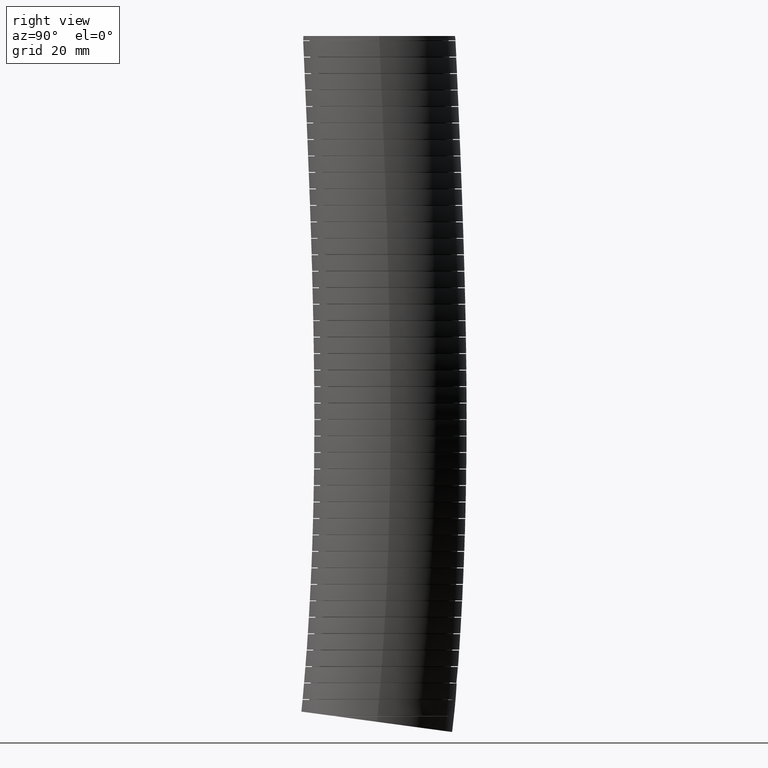
[diagram: clean part render]
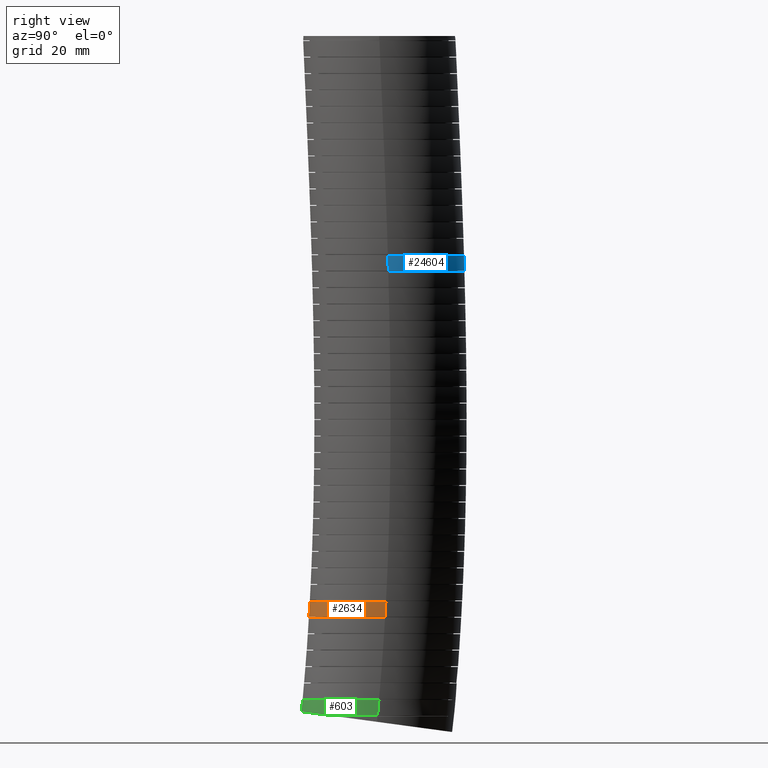
[diagram: same view with three faces highlighted in distinct colors, each labeled with its STEP entity id]
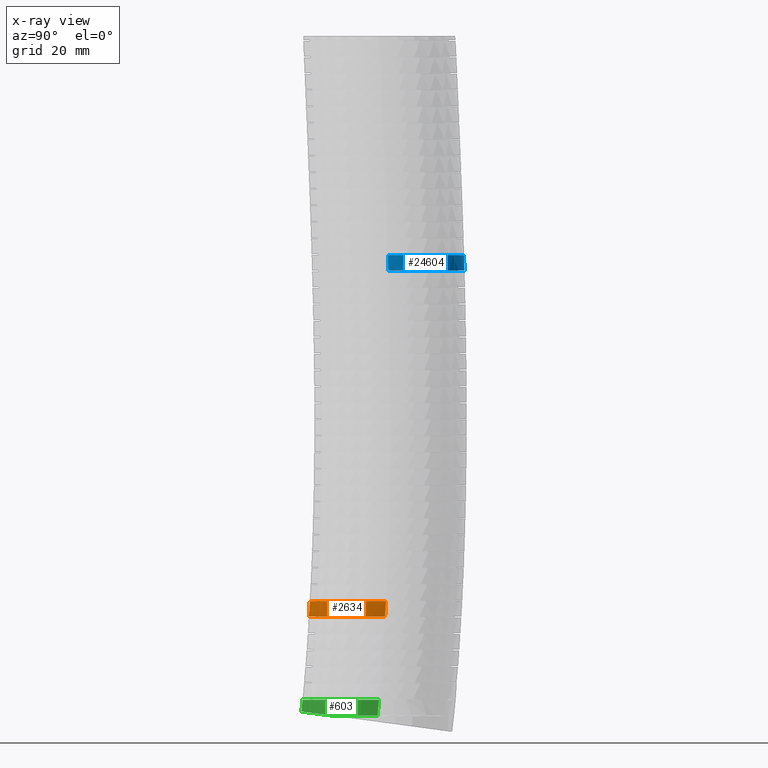
[diagram: x-ray of the same camera — body ghosted, the three highlighted faces saturated]
A machine part, right view with three faces highlighted in distinct colors.
The next image is the same camera in x-ray (body ghosted, the three faces saturated) — at least one of them is partly hidden behind the body in this view.
Their STEP definitions:

[orange] entity #2634 — the highlighted face is a freeform B-spline surface patch.
#2555 = EDGE_CURVE ( 'NONE', #2556, #2557, #14152, .T. ) ;
#2556 = VERTEX_POINT ( 'NONE', #14154 ) ;
#2557 = VERTEX_POINT ( 'NONE', #14153 ) ;
#2558 = ORIENTED_EDGE ( 'NONE', *, *, #2559, .T. ) ;
#2559 = EDGE_CURVE ( 'NONE', #2557, #2560, #14167, .T. ) ;
#2560 = VERTEX_POINT ( 'NONE', #14166 ) ;
#2561 = ORIENTED_EDGE ( 'NONE', *, *, #2562, .T. ) ;
#2562 = EDGE_CURVE ( 'NONE', #2560, #2563, #14160, .T. ) ;
#2563 = VERTEX_POINT ( 'NONE', #14161 ) ;
#2564 = ORIENTED_EDGE ( 'NONE', *, *, #2565, .F. ) ;
#2565 = EDGE_CURVE ( 'NONE', #2556, #2563, #14255, .T. ) ;
#2634 = ADVANCED_FACE ( 'NONE', ( #15330 ), #15372, .T. ) ;
#2635 = EDGE_LOOP ( 'NONE', ( #2636, #2558, #2561, #2564 ) ) ;
#2636 = ORIENTED_EDGE ( 'NONE', *, *, #2555, .T. ) ;
#14109 = CARTESIAN_POINT ( 'NONE',  ( -0.5329077174433586300, -0.8276550219520618600, -7.886210896748446300 ) ) ;
#14110 = CARTESIAN_POINT ( 'NONE',  ( -0.4866321505925665400, -0.8523849614128141700, -7.886210896748448100 ) ) ;
#14111 = CARTESIAN_POINT ( 'NONE',  ( -0.4709126582528779800, -0.8602944187288341600, -7.886210896748442800 ) ) ;
#14112 = CARTESIAN_POINT ( 'NONE',  ( -0.4391671176279919300, -0.8752928966085002900, -7.886210896748442800 ) ) ;
#14113 = CARTESIAN_POINT ( 'NONE',  ( -0.4231710971887463500, -0.8823706743343048300, -7.886210896748447200 ) ) ;
#14114 = CARTESIAN_POINT ( 'NONE',  ( -0.3425867596133927400, -0.9156933437792143000, -7.886210896748444600 ) ) ;
#14115 = CARTESIAN_POINT ( 'NONE',  ( -0.2762029321719339800, -0.9357983801267771900, -7.886210896748447200 ) ) ;
#14116 = CARTESIAN_POINT ( 'NONE',  ( -0.1908416038295327500, -0.9527858426205212400, -7.886210896748446300 ) ) ;
#14117 = CARTESIAN_POINT ( 'NONE',  ( -0.1736491902643264000, -0.9557724821673839700, -7.886210896748444600 ) ) ;
#14118 = CARTESIAN_POINT ( 'NONE',  ( -0.1390200274705778400, -0.9609102407795412400, -7.886210896748444600 ) ) ;
#14119 = CARTESIAN_POINT ( 'NONE',  ( -0.1215343156319288200, -0.9630652144093740900, -7.886210896748450800 ) ) ;
#14120 = CARTESIAN_POINT ( 'NONE',  ( -0.06917063270261127100, -0.9682059680910643000, -7.886210896748448100 ) ) ;
#14121 = CARTESIAN_POINT ( 'NONE',  ( -0.03435385710043408600, -0.9698876115459266200, -7.886210896748448100 ) ) ;
#14122 = CARTESIAN_POINT ( 'NONE',  ( 0.06982763812929322600, -0.9698511021605956700, -7.886210896748448100 ) ) ;
#14123 = CARTESIAN_POINT ( 'NONE',  ( 0.1389260865724564200, -0.9630999059678195800, -7.886210896748449900 ) ) ;
#14124 = CARTESIAN_POINT ( 'NONE',  ( 0.2248422055555404400, -0.9460238261655069500, -7.886210896748447200 ) ) ;
#14125 = CARTESIAN_POINT ( 'NONE',  ( 0.2420397217782886400, -0.9421616821406323400, -7.886210896748448100 ) ) ;
#14126 = CARTESIAN_POINT ( 'NONE',  ( 0.2760326664755155000, -0.9336397745053229800, -7.886210896748447200 ) ) ;
#14127 = CARTESIAN_POINT ( 'NONE',  ( 0.2928630692855397900, -0.9289750061650535700, -7.886210896748445400 ) ) ;
#14128 = CARTESIAN_POINT ( 'NONE',  ( 0.3428648459903292900, -0.9137905994544464100, -7.886210896748446300 ) ) ;
#14129 = CARTESIAN_POINT ( 'NONE',  ( 0.4082310336986895200, -0.8903767202048845600, -7.886210896748441900 ) ) ;
#14130 = CARTESIAN_POINT ( 'NONE',  ( 0.4710267651741402700, -0.8607125221706956000, -7.886210896748445400 ) ) ;
#14131 = CARTESIAN_POINT ( 'NONE',  ( 0.5171449174650280000, -0.8360846982503858900, -7.886210896748446300 ) ) ;
#14132 = CARTESIAN_POINT ( 'NONE',  ( 0.5323542377805640100, -0.8274781073507567800, -7.886210896748445400 ) ) ;
#14133 = CARTESIAN_POINT ( 'NONE',  ( 0.5624399552742934700, -0.8094553899863585800, -7.886210896748444600 ) ) ;
#14134 = CARTESIAN_POINT ( 'NONE',  ( 0.5773269468330506400, -0.8000288759195961500, -7.886210896748441900 ) ) ;
#14135 = CARTESIAN_POINT ( 'NONE',  ( 0.6501040383621339300, -0.7513892031127594700, -7.886210896748442800 ) ) ;
#14136 = CARTESIAN_POINT ( 'NONE',  ( 0.7037334389865431700, -0.7073195733011464800, -7.886210896748444600 ) ) ;
#14137 = CARTESIAN_POINT ( 'NONE',  ( 0.7774502331657940900, -0.6336592359315133000, -7.886210896748442800 ) ) ;
#14138 = CARTESIAN_POINT ( 'NONE',  ( 0.8008932594779363300, -0.6078374661979296700, -7.886210896748454300 ) ) ;
#14139 = CARTESIAN_POINT ( 'NONE',  ( 0.8343093903691570800, -0.5671410558188394500, -7.886210896748449900 ) ) ;
#14140 = CARTESIAN_POINT ( 'NONE',  ( 0.8451382446129068700, -0.5532650551740006000, -7.886210896748452500 ) ) ;
#14141 = CARTESIAN_POINT ( 'NONE',  ( 0.8659754590546431300, -0.5251637870394839600, -7.886210896748449900 ) ) ;
#14142 = CARTESIAN_POINT ( 'NONE',  ( 0.8760139873959232900, -0.5109025188811666700, -7.886210896748448100 ) ) ;
#14143 = CARTESIAN_POINT ( 'NONE',  ( 0.9243361403811386500, -0.4385595809178300400, -7.886210896748448100 ) ) ;
#14144 = CARTESIAN_POINT ( 'NONE',  ( 0.9570617408887153200, -0.3773977363782532500, -7.886210896748442800 ) ) ;
#14145 = CARTESIAN_POINT ( 'NONE',  ( 0.9971713609115993000, -0.2806790621422025600, -7.886210896748441000 ) ) ;
#14146 = CARTESIAN_POINT ( 'NONE',  ( 1.009076134971201000, -0.2474286055062996600, -7.886210896748448100 ) ) ;
#14147 = CARTESIAN_POINT ( 'NONE',  ( 1.029358805040220700, -0.1805254685852347400, -7.886210896748450800 ) ) ;
#14148 = CARTESIAN_POINT ( 'NONE',  ( 1.037793565925151200, -0.1467832422871192300, -7.886210896748449900 ) ) ;
#14149 = CARTESIAN_POINT ( 'NONE',  ( 1.058092294128095700, -0.04470403458045266900, -7.886210896748447200 ) ) ;
#14150 = CARTESIAN_POINT ( 'NONE',  ( 1.064999999999999300, 0.02447708022527727800, -7.886210896750097500 ) ) ;
#14151 = CARTESIAN_POINT ( 'NONE',  ( 1.064999999999999700, 0.09483469172872262300, -7.886210896750098300 ) ) ;
#14152 = B_SPLINE_CURVE_WITH_KNOTS ( 'NONE', 3,
 ( #14151, #14150, #14149, #14148, #14147, #14146, #14145, #14144, #14143, #14142, #14141, #14140, #14139, #14138, #14137, #14136, #14135, #14134, #14133, #14132, #14131, #14130, #14129, #14128, #14127, #14126, #14125, #14124, #14123, #14122, #14121, #14120, #14119, #14118, #14117, #14116, #14115, #14114, #14113, #14112, #14111, #14110, #14109, #14185, #14184, #14183, #14182, #14181, #14180, #14179, #14178, #14177, #14176, #14175, #14174, #14173, #14172, #14171, #14170, #14169, #14168 ),
 .UNSPECIFIED., .F., .F.,
 ( 4, 2, 2, 2, 2, 2, 2, 2, 2, 2, 2, 1, 2, 2, 2, 2, 2, 2, 2, 2, 2, 2, 2, 2, 2, 2, 2, 2, 2, 2, 4 ),
 ( 0.0000000000000000000, 0.005285142972791348800, 0.007927714459187024100, 0.01057028594558269800, 0.01585542891837404800, 0.01717671466157188000, 0.01849800040476971500, 0.02114057189116538500, 0.02642571486395672900, 0.02774700060715456700, 0.02906828635035240600, 0.03171085783674807600, 0.03435342932314375300, 0.03567471506634158800, 0.03699600080953943000, 0.04228114378233077000, 0.04492371526872644700, 0.04624500101192428200, 0.04756628675512212400, 0.05285142972791345700, 0.05417271547111129900, 0.05549400121430913400, 0.05813657270070481800, 0.06342171567349617900, 0.06606428715989184900, 0.06870685864628751900, 0.07134943013268320300, 0.07399200161907887300, 0.07927714459187022700, 0.08191971607826591100, 0.08456228756466158100 ),
 .UNSPECIFIED. ) ;
#14153 = CARTESIAN_POINT ( 'NONE',  ( -1.064999999999999500, 0.09483469172889713600, -7.886210896748440100 ) ) ;
#14154 = CARTESIAN_POINT ( 'NONE',  ( 1.064999999999999700, 0.09483469172872262300, -7.886210896750098300 ) ) ;
#14155 = CARTESIAN_POINT ( 'NONE',  ( -1.061539907147124300, -0.004897502247780938800, -8.105857541704349200 ) ) ;
#14156 = CARTESIAN_POINT ( 'NONE',  ( -1.062842329423635500, 0.01265155171818224300, -8.105857541704347500 ) ) ;
#14157 = CARTESIAN_POINT ( 'NONE',  ( -1.064571867483563800, 0.04772128927640774400, -8.105857541704351000 ) ) ;
#14158 = CARTESIAN_POINT ( 'NONE',  ( -1.064999999999999500, 0.06520895285868111300, -8.105857541704354600 ) ) ;
#14159 = CARTESIAN_POINT ( 'NONE',  ( -1.064999999999999500, 0.08265033061948368100, -8.105857541704354600 ) ) ;
#14160 = B_SPLINE_CURVE_WITH_KNOTS ( 'NONE', 3,
 ( #14159, #14158, #14157, #14156, #14155, #14235, #14234, #14233, #14232, #14231, #14230, #14229, #14228, #14227, #14226, #14225, #14224, #14223, #14222, #14221, #14220, #14219, #14218, #14217, #14216, #14215, #14214, #14213, #14212, #14211, #14210, #14209, #14208, #14207, #14206, #14205, #14204, #14203, #14202, #14201, #14200, #14199, #14198, #14197, #14196, #14195, #14194, #14193, #14192, #14191, #14190, #14189, #14188, #14187, #14186, #14268, #14267, #14266, #14265, #14264, #14263, #14262, #14261, #14260, #14259, #14258 ),
 .UNSPECIFIED., .F., .F.,
 ( 4, 2, 2, 2, 2, 2, 2, 2, 2, 2, 2, 2, 2, 2, 2, 2, 2, 2, 2, 2, 2, 2, 2, 2, 2, 2, 2, 2, 2, 2, 2, 2, 4 ),
 ( 0.08547807942200738600, 0.08681380579697069200, 0.08814953217193401100, 0.09082098492186062300, 0.09616389042171386000, 0.09883534317164047200, 0.1015067959215671000, 0.1041782486714937100, 0.1068497014214203300, 0.1121926069212735900, 0.1148640596712002100, 0.1175355124211268400, 0.1228784179209800700, 0.1242141442959433900, 0.1255498706709067000, 0.1282213234208333100, 0.1308927761707599500, 0.1322285025457232700, 0.1335642289206865600, 0.1389071344205398100, 0.1415785871704664200, 0.1429143135454297200, 0.1442500399203930400, 0.1495929454202462900, 0.1509286717952096100, 0.1522643981701729000, 0.1549358509200995400, 0.1602787564199527600, 0.1616144827949160800, 0.1629502091698794000, 0.1656216619198059800, 0.1682931146697326200, 0.1709645674196592100 ),
 .UNSPECIFIED. ) ;
#14161 = CARTESIAN_POINT ( 'NONE',  ( 1.064999999999999700, 0.08265033061932412800, -8.105857541705720600 ) ) ;
#14162 = CARTESIAN_POINT ( 'NONE',  ( -1.064999999999999500, 0.08265033061948368100, -8.105857541704354600 ) ) ;
#14163 = CARTESIAN_POINT ( 'NONE',  ( -1.064999999999999500, 0.08691424397809551000, -8.032650630803923200 ) ) ;
#14164 = CARTESIAN_POINT ( 'NONE',  ( -1.064999999999999500, 0.09097384709196523800, -7.959435003534584200 ) ) ;
#14165 = CARTESIAN_POINT ( 'NONE',  ( -1.064999999999999500, 0.09483469172889713600, -7.886210896748440100 ) ) ;
#14166 = CARTESIAN_POINT ( 'NONE',  ( -1.064999999999999500, 0.08265033061948368100, -8.105857541704354600 ) ) ;
#14167 = B_SPLINE_CURVE_WITH_KNOTS ( 'NONE', 3,
 ( #14165, #14164, #14163, #14162 ),
 .UNSPECIFIED., .F., .F.,
 ( 4, 4 ),
 ( 0.8235225721851260300, 0.8465253954408357200 ),
 .UNSPECIFIED. ) ;
#14168 = CARTESIAN_POINT ( 'NONE',  ( -1.064999999999999500, 0.09483469172889713600, -7.886210896748440100 ) ) ;
#14169 = CARTESIAN_POINT ( 'NONE',  ( -1.064999999999999700, 0.06008539538146283300, -7.886210896748448100 ) ) ;
#14170 = CARTESIAN_POINT ( 'NONE',  ( -1.063302629823473100, 0.02522825729650644100, -7.886210896748448100 ) ) ;
#14171 = CARTESIAN_POINT ( 'NONE',  ( -1.056397829208793700, -0.04470902915287015100, -7.886210896748447200 ) ) ;
#14172 = CARTESIAN_POINT ( 'NONE',  ( -1.051225903808188800, -0.07935349851975458100, -7.886210896748442800 ) ) ;
#14173 = CARTESIAN_POINT ( 'NONE',  ( -1.030805448003981900, -0.1816828035752472100, -7.886210896748444600 ) ) ;
#14174 = CARTESIAN_POINT ( 'NONE',  ( -1.010670200101767300, -0.2480694050605532500, -7.886210896748447200 ) ) ;
#14175 = CARTESIAN_POINT ( 'NONE',  ( -0.9705648792829448800, -0.3448661685374522800, -7.886210896748448100 ) ) ;
#14176 = CARTESIAN_POINT ( 'NONE',  ( -0.9554497452954549000, -0.3767928628640496700, -7.886210896748450800 ) ) ;
#14177 = CARTESIAN_POINT ( 'NONE',  ( -0.9224763382435874300, -0.4383812961844241200, -7.886210896748450800 ) ) ;
#14178 = CARTESIAN_POINT ( 'NONE',  ( -0.9045753671978211700, -0.4681840066358042800, -7.886210896748447200 ) ) ;
#14179 = CARTESIAN_POINT ( 'NONE',  ( -0.8660035988056274900, -0.5258475742923487400, -7.886210896748447200 ) ) ;
#14180 = CARTESIAN_POINT ( 'NONE',  ( -0.8453327137797449500, -0.5537083700277224400, -7.886210896748448100 ) ) ;
#14181 = CARTESIAN_POINT ( 'NONE',  ( -0.8011991150507370400, -0.6074726829577508100, -7.886210896748448100 ) ) ;
#14182 = CARTESIAN_POINT ( 'NONE',  ( -0.7776925592124646100, -0.6334202537696780300, -7.886210896748441000 ) ) ;
#14183 = CARTESIAN_POINT ( 'NONE',  ( -0.7031049908720384800, -0.7079412143758935200, -7.886210896748441000 ) ) ;
#14184 = CARTESIAN_POINT ( 'NONE',  ( -0.6493111452398991900, -0.7519454465108858000, -7.886210896748446300 ) ) ;
#14185 = CARTESIAN_POINT ( 'NONE',  ( -0.5627480351787173000, -0.8097592544306160300, -7.886210896748445400 ) ) ;
#14186 = CARTESIAN_POINT ( 'NONE',  ( 0.9568621341204305300, -0.3902137545373774400, -8.105857541704354600 ) ) ;
#14187 = CARTESIAN_POINT ( 'NONE',  ( 0.9240266218936111800, -0.4514437668631183800, -8.105857541704352800 ) ) ;
#14188 = CARTESIAN_POINT ( 'NONE',  ( 0.8661766051977828300, -0.5380137494236255600, -8.105857541704351000 ) ) ;
#14189 = CARTESIAN_POINT ( 'NONE',  ( 0.8454499859117191600, -0.5659848014884072400, -8.105857541704359900 ) ) ;
#14190 = CARTESIAN_POINT ( 'NONE',  ( 0.8121382407256490000, -0.6065780547450226900, -8.105857541704354600 ) ) ;
#14191 = CARTESIAN_POINT ( 'NONE',  ( 0.8006295567853326500, -0.6199173868956471300, -8.105857541704349200 ) ) ;
#14192 = CARTESIAN_POINT ( 'NONE',  ( 0.7770628961462108200, -0.6459026987823745000, -8.105857541704345700 ) ) ;
#14193 = CARTESIAN_POINT ( 'NONE',  ( 0.7650031160295933700, -0.6585556566240727800, -8.105857541704354600 ) ) ;
#14194 = CARTESIAN_POINT ( 'NONE',  ( 0.7033476642995759600, -0.7201535325110910400, -8.105857541704359900 ) ) ;
#14195 = CARTESIAN_POINT ( 'NONE',  ( 0.6497209547010101000, -0.7641451607877295400, -8.105857541704352800 ) ) ;
#14196 = CARTESIAN_POINT ( 'NONE',  ( 0.5773218050425380500, -0.8125413131428325100, -8.105857541704351000 ) ) ;
#14197 = CARTESIAN_POINT ( 'NONE',  ( 0.5625712770744026900, -0.8218879132047021100, -8.105857541704349200 ) ) ;
#14198 = CARTESIAN_POINT ( 'NONE',  ( 0.5325192171846508900, -0.8399040464649399900, -8.105857541704351000 ) ) ;
#14199 = CARTESIAN_POINT ( 'NONE',  ( 0.5171818759287709600, -0.8485907926303416500, -8.105857541704352800 ) ) ;
#14200 = CARTESIAN_POINT ( 'NONE',  ( 0.4708112065488414500, -0.8733600639580861900, -8.105857541704352800 ) ) ;
#14201 = CARTESIAN_POINT ( 'NONE',  ( 0.4393063473836451000, -0.8882321393663711300, -8.105857541704356400 ) ) ;
#14202 = CARTESIAN_POINT ( 'NONE',  ( 0.3430679556359826900, -0.9280632461116422600, -8.105857541704356400 ) ) ;
#14203 = CARTESIAN_POINT ( 'NONE',  ( 0.2766271459407069200, -0.9482830632555878700, -8.105857541704356400 ) ) ;
#14204 = CARTESIAN_POINT ( 'NONE',  ( 0.1906358000941167900, -0.9653957904403106500, -8.105857541704356400 ) ) ;
#14205 = CARTESIAN_POINT ( 'NONE',  ( 0.1732731837042757700, -0.9684061367688096000, -8.105857541704352800 ) ) ;
#14206 = CARTESIAN_POINT ( 'NONE',  ( 0.1386344518787487000, -0.9735345374590989000, -8.105857541704354600 ) ) ;
#14207 = CARTESIAN_POINT ( 'NONE',  ( 0.1213114258430399600, -0.9756630527997004500, -8.105857541704352800 ) ) ;
#14208 = CARTESIAN_POINT ( 'NONE',  ( 0.06933155124076055600, -0.9807634313257453900, -8.105857541704354600 ) ) ;
#14209 = CARTESIAN_POINT ( 'NONE',  ( 0.03466393160451718100, -0.9824531535531784200, -8.105857541704352800 ) ) ;
#14210 = CARTESIAN_POINT ( 'NONE',  ( -0.03469970765178582300, -0.9824519883228979300, -8.105857541704354600 ) ) ;
#14211 = CARTESIAN_POINT ( 'NONE',  ( -0.06939572693120742200, -0.9807611414133181600, -8.105857541704354600 ) ) ;
#14212 = CARTESIAN_POINT ( 'NONE',  ( -0.1214614178527763500, -0.9756463211554659000, -8.105857541704352800 ) ) ;
#14213 = CARTESIAN_POINT ( 'NONE',  ( -0.1388202649109362400, -0.9735108588748472300, -8.105857541704351000 ) ) ;
#14214 = CARTESIAN_POINT ( 'NONE',  ( -0.1735453347456653900, -0.9683619610989765400, -8.105857541704351000 ) ) ;
#14215 = CARTESIAN_POINT ( 'NONE',  ( -0.1908888508511773500, -0.9653490122829167000, -8.105857541704356400 ) ) ;
#14216 = CARTESIAN_POINT ( 'NONE',  ( -0.2766695944706324400, -0.9482601839893550800, -8.105857541704358100 ) ) ;
#14217 = CARTESIAN_POINT ( 'NONE',  ( -0.3430676839038107600, -0.9280677367477895300, -8.105857541704352800 ) ) ;
#14218 = CARTESIAN_POINT ( 'NONE',  ( -0.4393924314673192700, -0.8881943189035068600, -8.105857541704352800 ) ) ;
#14219 = CARTESIAN_POINT ( 'NONE',  ( -0.4709514061443470000, -0.8732943668883307300, -8.105857541704352800 ) ) ;
#14220 = CARTESIAN_POINT ( 'NONE',  ( -0.5329335318107617500, -0.8401676607289627600, -8.105857541704352800 ) ) ;
#14221 = CARTESIAN_POINT ( 'NONE',  ( -0.5629686742191137800, -0.8221397700427400800, -8.105857541704351000 ) ) ;
#14222 = CARTESIAN_POINT ( 'NONE',  ( -0.6497167801313448200, -0.7641400942275818900, -8.105857541704351000 ) ) ;
#14223 = CARTESIAN_POINT ( 'NONE',  ( -0.7033631061173512000, -0.7201512533788484400, -8.105857541704354600 ) ) ;
#14224 = CARTESIAN_POINT ( 'NONE',  ( -0.7774771330169937300, -0.6460866940786538200, -8.105857541704356400 ) ) ;
#14225 = CARTESIAN_POINT ( 'NONE',  ( -0.8012018453924599800, -0.6199143300623898300, -8.105857541704361700 ) ) ;
#14226 = CARTESIAN_POINT ( 'NONE',  ( -0.8455119629672323000, -0.5658999004014692000, -8.105857541704361700 ) ) ;
#14227 = CARTESIAN_POINT ( 'NONE',  ( -0.8662105916909378400, -0.5379653198759220000, -8.105857541704351000 ) ) ;
#14228 = CARTESIAN_POINT ( 'NONE',  ( -0.9047553854942392800, -0.4802798842257277000, -8.105857541704354600 ) ) ;
#14229 = CARTESIAN_POINT ( 'NONE',  ( -0.9226014605321958300, -0.4505289717680648300, -8.105857541704356400 ) ) ;
#14230 = CARTESIAN_POINT ( 'NONE',  ( -0.9554184542382675400, -0.3891964229121320200, -8.105857541704354600 ) ) ;
#14231 = CARTESIAN_POINT ( 'NONE',  ( -0.9704126096266695300, -0.3575592047724672800, -8.105857541704351000 ) ) ;
#14232 = CARTESIAN_POINT ( 'NONE',  ( -1.010776360414645400, -0.2601480446482722400, -8.105857541704351000 ) ) ;
#14233 = CARTESIAN_POINT ( 'NONE',  ( -1.030885597930866400, -0.1936176447078888100, -8.105857541704354600 ) ) ;
#14234 = CARTESIAN_POINT ( 'NONE',  ( -1.051234543269627500, -0.09152760301624969500, -8.105857541704352800 ) ) ;
#14235 = CARTESIAN_POINT ( 'NONE',  ( -1.056369636768315500, -0.05711236058797566900, -8.105857541704347500 ) ) ;
#14247 = CARTESIAN_POINT ( 'NONE',  ( 1.064999999999999700, 0.08265033061932412800, -8.105857541705720600 ) ) ;
#14248 = CARTESIAN_POINT ( 'NONE',  ( 1.064999999999999700, 0.08691424397801234000, -8.032650630805394000 ) ) ;
#14249 = CARTESIAN_POINT ( 'NONE',  ( 1.064999999999999700, 0.09097384709187943100, -7.959435003536154500 ) ) ;
#14250 = CARTESIAN_POINT ( 'NONE',  ( 1.064999999999999700, 0.09483469172872262300, -7.886210896750098300 ) ) ;
#14255 = B_SPLINE_CURVE_WITH_KNOTS ( 'NONE', 3,
 ( #14250, #14249, #14248, #14247 ),
 .UNSPECIFIED., .F., .F.,
 ( 4, 4 ),
 ( 0.8235225721853005600, 0.8465253954409793800 ),
 .UNSPECIFIED. ) ;
#14258 = CARTESIAN_POINT ( 'NONE',  ( 1.064999999999999700, 0.08265033061932412800, -8.105857541705720600 ) ) ;
#14259 = CARTESIAN_POINT ( 'NONE',  ( 1.064999999999999500, 0.04747040961225732600, -8.105857541705718800 ) ) ;
#14260 = CARTESIAN_POINT ( 'NONE',  ( 1.063245126757230900, 0.01226794700355861300, -8.105857541704354600 ) ) ;
#14261 = CARTESIAN_POINT ( 'NONE',  ( 1.056354753757926800, -0.05720673502394806700, -8.105857541704359900 ) ) ;
#14262 = CARTESIAN_POINT ( 'NONE',  ( 1.051225421491781300, -0.09157980400099148500, -8.105857541704358100 ) ) ;
#14263 = CARTESIAN_POINT ( 'NONE',  ( 1.037662584043628400, -0.1596112664076044800, -8.105857541704354600 ) ) ;
#14264 = CARTESIAN_POINT ( 'NONE',  ( 1.029229002213870600, -0.1932696432586612200, -8.105857541704349200 ) ) ;
#14265 = CARTESIAN_POINT ( 'NONE',  ( 1.014076551531063700, -0.2432160219914940300, -8.105857541704345700 ) ) ;
#14266 = CARTESIAN_POINT ( 'NONE',  ( 1.008607984481216100, -0.2597744576999701500, -8.105857541704343900 ) ) ;
#14267 = CARTESIAN_POINT ( 'NONE',  ( 0.9968221369770349200, -0.2927077567880997400, -8.105857541704347500 ) ) ;
#14268 = CARTESIAN_POINT ( 'NONE',  ( 0.9904873843259405200, -0.3091237933857957600, -8.105857541704351000 ) ) ;
#15330 = FACE_OUTER_BOUND ( 'NONE', #2635, .T. ) ;
#15372 =( BOUNDED_SURFACE ( )  B_SPLINE_SURFACE ( 3, 3, ( 
 ( #15425, #15424, #15422, #15421, #15420, #15419 ),
 ( #15418, #15417, #15416, #15415, #15414, #15413 ),
 ( #15412, #15411, #15410, #15409, #15408, #15407 ),
 ( #15406, #15405, #15404, #15403, #15402, #15401 ),
 ( #15400, #15399, #15398, #15397, #15396, #15395 ),
 ( #15394, #15393, #15392, #15391, #15390, #15389 ),
 ( #15387, #15386, #15384, #15383, #15381, #15441 ) ),
 .UNSPECIFIED., .F., .F., .F. ) 
 B_SPLINE_SURFACE_WITH_KNOTS ( ( 4, 3, 4 ),
 ( 4, 1, 1, 4 ),
 ( 0.0000000000000000000, 0.5000000000000000000, 1.000000000000000000 ),
 ( 0.0000000000000000000, 0.5600000000000001600, 0.9402239691641354200, 1.000000000000000000 ),
 .UNSPECIFIED. ) 
 GEOMETRIC_REPRESENTATION_ITEM ( )  RATIONAL_B_SPLINE_SURFACE ( (
 ( 1.000000000000000000, 1.000000000000000000, 1.000000000000000200, 1.000000000000000200, 1.000000000000000200, 1.000000000000000200),
 ( 0.3333333333333333100, 0.3333333333333333100, 0.3333333333333332600, 0.3333333333333334300, 0.3333333333333333700, 0.3333333333333333700),
 ( 0.3333333333333333100, 0.3333333333333333100, 0.3333333333333332600, 0.3333333333333334300, 0.3333333333333333700, 0.3333333333333333700),
 ( 1.000000000000000000, 1.000000000000000000, 1.000000000000000200, 1.000000000000000200, 1.000000000000000200, 1.000000000000000200),
 ( 0.3333333333333333100, 0.3333333333333333100, 0.3333333333333332600, 0.3333333333333334300, 0.3333333333333333700, 0.3333333333333333700),
 ( 0.3333333333333333100, 0.3333333333333333100, 0.3333333333333332600, 0.3333333333333334300, 0.3333333333333333700, 0.3333333333333333700),
 ( 1.000000000000000000, 1.000000000000000000, 1.000000000000000200, 1.000000000000000200, 1.000000000000000200, 1.000000000000000200) ) ) 
 REPRESENTATION_ITEM ( '' )  SURFACE ( )  );
#15381 = CARTESIAN_POINT ( 'NONE',  ( 1.064999999999999700, -0.01282253193203170200, -9.380021792021830500 ) ) ;
#15383 = CARTESIAN_POINT ( 'NONE',  ( 1.064999999999999700, 0.1136175452062334300, -7.981628316551387500 ) ) ;
#15384 = CARTESIAN_POINT ( 'NONE',  ( 1.064999999999999500, 0.2122813731536103700, -4.795410929656176400 ) ) ;
#15386 = CARTESIAN_POINT ( 'NONE',  ( 1.064999999999999900, 0.07923988111738790300, -1.790019474294677300 ) ) ;
#15387 = CARTESIAN_POINT ( 'NONE',  ( 1.064999999999999900, 0.0000000000000000000, 0.0000000000000000000 ) ) ;
#15389 = CARTESIAN_POINT ( 'NONE',  ( 1.064999999999999700, 2.080788144512650400, -9.855435472541238100 ) ) ;
#15390 = CARTESIAN_POINT ( 'NONE',  ( 1.064999999999999700, 2.098892687478189700, -9.655694098161024600 ) ) ;
#15391 = CARTESIAN_POINT ( 'NONE',  ( 1.064999999999999700, 2.232156786707371500, -8.185435810711052100 ) ) ;
#15392 = CARTESIAN_POINT ( 'NONE',  ( 1.064999999999999900, 2.345283078702082900, -4.843727318243294300 ) ) ;
#15393 = CARTESIAN_POINT ( 'NONE',  ( 1.065000000000000200, 2.210360350555081500, -1.808054899781085700 ) ) ;
#15394 = CARTESIAN_POINT ( 'NONE',  ( 1.064999999999999900, 2.129999999999999900, 0.0000000000000000000 ) ) ;
#15395 = CARTESIAN_POINT ( 'NONE',  ( -1.064999999999999700, 2.080788144512650400, -9.855435472541238100 ) ) ;
#15396 = CARTESIAN_POINT ( 'NONE',  ( -1.064999999999999700, 2.098892687478189700, -9.655694098161024600 ) ) ;
#15397 = CARTESIAN_POINT ( 'NONE',  ( -1.064999999999999500, 2.232156786707371500, -8.185435810711052100 ) ) ;
#15398 = CARTESIAN_POINT ( 'NONE',  ( -1.064999999999999500, 2.345283078702082900, -4.843727318243294300 ) ) ;
#15399 = CARTESIAN_POINT ( 'NONE',  ( -1.064999999999999900, 2.210360350555081500, -1.808054899781085700 ) ) ;
#15400 = CARTESIAN_POINT ( 'NONE',  ( -1.064999999999999900, 2.129999999999999900, 0.0000000000000000000 ) ) ;
#15401 = CARTESIAN_POINT ( 'NONE',  ( -1.064999999999999700, -0.02999999999999980100, -9.569999999999996700 ) ) ;
#15402 = CARTESIAN_POINT ( 'NONE',  ( -1.064999999999999700, -0.01282253193203157000, -9.380021792021830500 ) ) ;
#15403 = CARTESIAN_POINT ( 'NONE',  ( -1.064999999999999700, 0.1136175452062335600, -7.981628316551387500 ) ) ;
#15404 = CARTESIAN_POINT ( 'NONE',  ( -1.064999999999999500, 0.2122813731536105100, -4.795410929656176400 ) ) ;
#15405 = CARTESIAN_POINT ( 'NONE',  ( -1.064999999999999900, 0.07923988111738802800, -1.790019474294677300 ) ) ;
#15406 = CARTESIAN_POINT ( 'NONE',  ( -1.064999999999999900, 1.304248841091931100E-016, 0.0000000000000000000 ) ) ;
#15407 = CARTESIAN_POINT ( 'NONE',  ( -1.064999999999999900, -2.140788144512650400, -9.284564527458751800 ) ) ;
#15408 = CARTESIAN_POINT ( 'NONE',  ( -1.064999999999999900, -2.124537751342253000, -9.104349485882636400 ) ) ;
#15409 = CARTESIAN_POINT ( 'NONE',  ( -1.064999999999999700, -2.004921696294905200, -7.777820822391721100 ) ) ;
#15410 = CARTESIAN_POINT ( 'NONE',  ( -1.065000000000000400, -1.920720332394860500, -4.747094541069063900 ) ) ;
#15411 = CARTESIAN_POINT ( 'NONE',  ( -1.065000000000000200, -2.051880588320306000, -1.771984048808268300 ) ) ;
#15412 = CARTESIAN_POINT ( 'NONE',  ( -1.065000000000000200, -2.129999999999999900, 0.0000000000000000000 ) ) ;
#15413 = CARTESIAN_POINT ( 'NONE',  ( 1.064999999999999700, -2.140788144512650400, -9.284564527458751800 ) ) ;
#15414 = CARTESIAN_POINT ( 'NONE',  ( 1.064999999999999700, -2.124537751342253000, -9.104349485882636400 ) ) ;
#15415 = CARTESIAN_POINT ( 'NONE',  ( 1.064999999999999700, -2.004921696294905200, -7.777820822391721100 ) ) ;
#15416 = CARTESIAN_POINT ( 'NONE',  ( 1.064999999999999900, -1.920720332394860500, -4.747094541069063900 ) ) ;
#15417 = CARTESIAN_POINT ( 'NONE',  ( 1.065000000000000200, -2.051880588320306000, -1.771984048808268300 ) ) ;
#15418 = CARTESIAN_POINT ( 'NONE',  ( 1.064999999999999900, -2.129999999999999900, 0.0000000000000000000 ) ) ;
#15419 = CARTESIAN_POINT ( 'NONE',  ( 1.064999999999999700, -0.02999999999999993000, -9.569999999999996700 ) ) ;
#15420 = CARTESIAN_POINT ( 'NONE',  ( 1.064999999999999700, -0.01282253193203170200, -9.380021792021830500 ) ) ;
#15421 = CARTESIAN_POINT ( 'NONE',  ( 1.064999999999999700, 0.1136175452062334300, -7.981628316551387500 ) ) ;
#15422 = CARTESIAN_POINT ( 'NONE',  ( 1.064999999999999500, 0.2122813731536103700, -4.795410929656176400 ) ) ;
#15424 = CARTESIAN_POINT ( 'NONE',  ( 1.064999999999999900, 0.07923988111738790300, -1.790019474294677300 ) ) ;
#15425 = CARTESIAN_POINT ( 'NONE',  ( 1.064999999999999900, 0.0000000000000000000, 0.0000000000000000000 ) ) ;
#15441 = CARTESIAN_POINT ( 'NONE',  ( 1.064999999999999700, -0.02999999999999993000, -9.569999999999996700 ) ) ;

[blue] entity #24604 — the highlighted face is a freeform B-spline surface patch.
#1252 = FACE_OUTER_BOUND ( 'NONE', #24597, .T. ) ;
#1290 = CARTESIAN_POINT ( 'NONE',  ( -1.064999999999999900, -2.124537751342253000, -9.104349485882636400 ) ) ;
#1291 = CARTESIAN_POINT ( 'NONE',  ( -1.064999999999999700, -2.004921696294905200, -7.777820822391721100 ) ) ;
#1292 = CARTESIAN_POINT ( 'NONE',  ( -1.065000000000000400, -1.920720332394860500, -4.747094541069063900 ) ) ;
#1293 = CARTESIAN_POINT ( 'NONE',  ( -1.065000000000000200, -2.051880588320306000, -1.771984048808268300 ) ) ;
#1294 = CARTESIAN_POINT ( 'NONE',  ( -1.065000000000000200, -2.129999999999999900, 0.0000000000000000000 ) ) ;
#1295 = CARTESIAN_POINT ( 'NONE',  ( 1.064999999999999700, -2.140788144512650400, -9.284564527458751800 ) ) ;
#1296 = CARTESIAN_POINT ( 'NONE',  ( 1.064999999999999700, -2.124537751342253000, -9.104349485882636400 ) ) ;
#1297 = CARTESIAN_POINT ( 'NONE',  ( 1.064999999999999700, -2.004921696294905200, -7.777820822391721100 ) ) ;
#1298 = CARTESIAN_POINT ( 'NONE',  ( 1.064999999999999900, -1.920720332394860500, -4.747094541069063900 ) ) ;
#1299 = CARTESIAN_POINT ( 'NONE',  ( 1.065000000000000200, -2.051880588320306000, -1.771984048808268300 ) ) ;
#1300 = CARTESIAN_POINT ( 'NONE',  ( 1.064999999999999900, -2.129999999999999900, 0.0000000000000000000 ) ) ;
#1301 = CARTESIAN_POINT ( 'NONE',  ( 1.064999999999999700, -0.02999999999999993000, -9.569999999999996700 ) ) ;
#1302 = CARTESIAN_POINT ( 'NONE',  ( 1.064999999999999700, -0.01282253193203170200, -9.380021792021830500 ) ) ;
#1303 = CARTESIAN_POINT ( 'NONE',  ( 1.064999999999999700, 0.1136175452062334300, -7.981628316551387500 ) ) ;
#1304 = CARTESIAN_POINT ( 'NONE',  ( 1.064999999999999500, 0.2122813731536103700, -4.795410929656176400 ) ) ;
#1305 = CARTESIAN_POINT ( 'NONE',  ( 1.064999999999999900, 0.07923988111738790300, -1.790019474294677300 ) ) ;
#1306 = CARTESIAN_POINT ( 'NONE',  ( 1.064999999999999900, 0.0000000000000000000, 0.0000000000000000000 ) ) ;
#1311 =( BOUNDED_SURFACE ( )  B_SPLINE_SURFACE ( 3, 3, ( 
 ( #1306, #1305, #1304, #1303, #1302, #1301 ),
 ( #1300, #1299, #1298, #1297, #1296, #1295 ),
 ( #1294, #1293, #1292, #1291, #1290, #1344 ),
 ( #1343, #1342, #1341, #1340, #1339, #1338 ),
 ( #1337, #1336, #1335, #1334, #1333, #1332 ),
 ( #1331, #1330, #1329, #1328, #1327, #1326 ),
 ( #1325, #1324, #1323, #1322, #1321, #1320 ) ),
 .UNSPECIFIED., .F., .F., .F. ) 
 B_SPLINE_SURFACE_WITH_KNOTS ( ( 4, 3, 4 ),
 ( 4, 1, 1, 4 ),
 ( 0.0000000000000000000, 0.5000000000000000000, 1.000000000000000000 ),
 ( 0.0000000000000000000, 0.5600000000000001600, 0.9402239691641354200, 1.000000000000000000 ),
 .UNSPECIFIED. ) 
 GEOMETRIC_REPRESENTATION_ITEM ( )  RATIONAL_B_SPLINE_SURFACE ( (
 ( 1.000000000000000000, 1.000000000000000000, 1.000000000000000200, 1.000000000000000200, 1.000000000000000200, 1.000000000000000200),
 ( 0.3333333333333333100, 0.3333333333333333100, 0.3333333333333332600, 0.3333333333333334300, 0.3333333333333333700, 0.3333333333333333700),
 ( 0.3333333333333333100, 0.3333333333333333100, 0.3333333333333332600, 0.3333333333333334300, 0.3333333333333333700, 0.3333333333333333700),
 ( 1.000000000000000000, 1.000000000000000000, 1.000000000000000200, 1.000000000000000200, 1.000000000000000200, 1.000000000000000200),
 ( 0.3333333333333333100, 0.3333333333333333100, 0.3333333333333332600, 0.3333333333333334300, 0.3333333333333333700, 0.3333333333333333700),
 ( 0.3333333333333333100, 0.3333333333333333100, 0.3333333333333332600, 0.3333333333333334300, 0.3333333333333333700, 0.3333333333333333700),
 ( 1.000000000000000000, 1.000000000000000000, 1.000000000000000200, 1.000000000000000200, 1.000000000000000200, 1.000000000000000200) ) ) 
 REPRESENTATION_ITEM ( '' )  SURFACE ( )  );
#1320 = CARTESIAN_POINT ( 'NONE',  ( 1.064999999999999700, -0.02999999999999993000, -9.569999999999996700 ) ) ;
#1321 = CARTESIAN_POINT ( 'NONE',  ( 1.064999999999999700, -0.01282253193203170200, -9.380021792021830500 ) ) ;
#1322 = CARTESIAN_POINT ( 'NONE',  ( 1.064999999999999700, 0.1136175452062334300, -7.981628316551387500 ) ) ;
#1323 = CARTESIAN_POINT ( 'NONE',  ( 1.064999999999999500, 0.2122813731536103700, -4.795410929656176400 ) ) ;
#1324 = CARTESIAN_POINT ( 'NONE',  ( 1.064999999999999900, 0.07923988111738790300, -1.790019474294677300 ) ) ;
#1325 = CARTESIAN_POINT ( 'NONE',  ( 1.064999999999999900, 0.0000000000000000000, 0.0000000000000000000 ) ) ;
#1326 = CARTESIAN_POINT ( 'NONE',  ( 1.064999999999999700, 2.080788144512650400, -9.855435472541238100 ) ) ;
#1327 = CARTESIAN_POINT ( 'NONE',  ( 1.064999999999999700, 2.098892687478189700, -9.655694098161024600 ) ) ;
#1328 = CARTESIAN_POINT ( 'NONE',  ( 1.064999999999999700, 2.232156786707371500, -8.185435810711052100 ) ) ;
#1329 = CARTESIAN_POINT ( 'NONE',  ( 1.064999999999999900, 2.345283078702082900, -4.843727318243294300 ) ) ;
#1330 = CARTESIAN_POINT ( 'NONE',  ( 1.065000000000000200, 2.210360350555081500, -1.808054899781085700 ) ) ;
#1331 = CARTESIAN_POINT ( 'NONE',  ( 1.064999999999999900, 2.129999999999999900, 0.0000000000000000000 ) ) ;
#1332 = CARTESIAN_POINT ( 'NONE',  ( -1.064999999999999700, 2.080788144512650400, -9.855435472541238100 ) ) ;
#1333 = CARTESIAN_POINT ( 'NONE',  ( -1.064999999999999700, 2.098892687478189700, -9.655694098161024600 ) ) ;
#1334 = CARTESIAN_POINT ( 'NONE',  ( -1.064999999999999500, 2.232156786707371500, -8.185435810711052100 ) ) ;
#1335 = CARTESIAN_POINT ( 'NONE',  ( -1.064999999999999500, 2.345283078702082900, -4.843727318243294300 ) ) ;
#1336 = CARTESIAN_POINT ( 'NONE',  ( -1.064999999999999900, 2.210360350555081500, -1.808054899781085700 ) ) ;
#1337 = CARTESIAN_POINT ( 'NONE',  ( -1.064999999999999900, 2.129999999999999900, 0.0000000000000000000 ) ) ;
#1338 = CARTESIAN_POINT ( 'NONE',  ( -1.064999999999999700, -0.02999999999999980100, -9.569999999999996700 ) ) ;
#1339 = CARTESIAN_POINT ( 'NONE',  ( -1.064999999999999700, -0.01282253193203157000, -9.380021792021830500 ) ) ;
#1340 = CARTESIAN_POINT ( 'NONE',  ( -1.064999999999999700, 0.1136175452062335600, -7.981628316551387500 ) ) ;
#1341 = CARTESIAN_POINT ( 'NONE',  ( -1.064999999999999500, 0.2122813731536105100, -4.795410929656176400 ) ) ;
#1342 = CARTESIAN_POINT ( 'NONE',  ( -1.064999999999999900, 0.07923988111738802800, -1.790019474294677300 ) ) ;
#1343 = CARTESIAN_POINT ( 'NONE',  ( -1.064999999999999900, 1.304248841091931100E-016, 0.0000000000000000000 ) ) ;
#1344 = CARTESIAN_POINT ( 'NONE',  ( -1.064999999999999900, -2.140788144512650400, -9.284564527458751800 ) ) ;
#2192 = EDGE_CURVE ( 'NONE', #7016, #7021, #11303, .T. ) ;
#2193 = ORIENTED_EDGE ( 'NONE', *, *, #2195, .T. ) ;
#2194 = ORIENTED_EDGE ( 'NONE', *, *, #7009, .T. ) ;
#2195 = EDGE_CURVE ( 'NONE', #7018, #7023, #11412, .T. ) ;
#2200 = ORIENTED_EDGE ( 'NONE', *, *, #2192, .T. ) ;
#7009 = EDGE_CURVE ( 'NONE', #7023, #7016, #18852, .T. ) ;
#7016 = VERTEX_POINT ( 'NONE', #18887 ) ;
#7018 = VERTEX_POINT ( 'NONE', #18886 ) ;
#7020 = EDGE_CURVE ( 'NONE', #7018, #7021, #18884, .T. ) ;
#7021 = VERTEX_POINT ( 'NONE', #18883 ) ;
#7023 = VERTEX_POINT ( 'NONE', #18952 ) ;
#11287 = CARTESIAN_POINT ( 'NONE',  ( 0.7037582237558968100, 0.9291227423005451500, -3.277565665748031900 ) ) ;
#11288 = CARTESIAN_POINT ( 'NONE',  ( 0.7774734435943586600, 0.8554520914829231200, -3.277565665748031400 ) ) ;
#11289 = CARTESIAN_POINT ( 'NONE',  ( 0.8009158818498137700, 0.8296267254686159300, -3.277565665748030500 ) ) ;
#11290 = CARTESIAN_POINT ( 'NONE',  ( 0.8343310254988538500, 0.7889246672448891900, -3.277565665748029700 ) ) ;
#11291 = CARTESIAN_POINT ( 'NONE',  ( 0.8451590740876855400, 0.7750473262568758900, -3.277565665748030500 ) ) ;
#11292 = CARTESIAN_POINT ( 'NONE',  ( 0.8659948664180825400, 0.7469431911668891200, -3.277565665748032300 ) ) ;
#11293 = CARTESIAN_POINT ( 'NONE',  ( 0.8760326862871881100, 0.7326804903569913400, -3.277565665748031400 ) ) ;
#11294 = CARTESIAN_POINT ( 'NONE',  ( 0.9243513171648436400, 0.6603303973795907600, -3.277565665748031900 ) ) ;
#11295 = CARTESIAN_POINT ( 'NONE',  ( 0.9570741565538440900, 0.5991628507259755300, -3.277565665748031400 ) ) ;
#11296 = CARTESIAN_POINT ( 'NONE',  ( 0.9971799490233336200, 0.5024357830964841800, -3.277565665748031900 ) ) ;
#11297 = CARTESIAN_POINT ( 'NONE',  ( 1.009083414253761900, 0.4691827287326478200, -3.277565665748033700 ) ) ;
#11298 = CARTESIAN_POINT ( 'NONE',  ( 1.029363581821299200, 0.4022752586172415600, -3.277565665748032800 ) ) ;
#11299 = CARTESIAN_POINT ( 'NONE',  ( 1.037797264259935800, 0.3685309067930754300, -3.277565665748030100 ) ) ;
#11300 = CARTESIAN_POINT ( 'NONE',  ( 1.058093326852166800, 0.2664454536822724000, -3.277565665748030100 ) ) ;
#11301 = CARTESIAN_POINT ( 'NONE',  ( 1.064999999999998800, 0.1972603472325705800, -3.277565665556101400 ) ) ;
#11302 = CARTESIAN_POINT ( 'NONE',  ( 1.064999999999999500, 0.1268989670867864400, -3.277565665556103200 ) ) ;
#11303 = B_SPLINE_CURVE_WITH_KNOTS ( 'NONE', 3,
 ( #11302, #11301, #11300, #11299, #11298, #11297, #11296, #11295, #11294, #11293, #11292, #11291, #11290, #11289, #11288, #11287, #11367, #11366, #11365, #11364, #11363, #11362, #11361, #11360, #11359, #11358, #11357, #11356, #11355, #11354, #11353, #11352, #11351, #11350, #11349, #11348, #11347, #11346, #11345, #11344, #11343, #11342, #11341, #11340, #11339, #11338, #11336, #11335, #11334, #11333, #11332, #11330, #11329, #11328, #11327, #11326, #11325, #11324, #11323, #11322, #11321 ),
 .UNSPECIFIED., .F., .F.,
 ( 4, 2, 2, 2, 2, 2, 2, 2, 2, 2, 2, 1, 2, 2, 2, 2, 2, 2, 2, 2, 2, 2, 2, 2, 2, 2, 2, 2, 2, 2, 4 ),
 ( 0.0000000000000000000, 0.005285432033917121300, 0.007928148050875679900, 0.01057086406783423700, 0.01585629610175134600, 0.01717765411023063100, 0.01849901211870991200, 0.02114172813566848500, 0.02642716016958563200, 0.02774851817806493100, 0.02906987618654422200, 0.03171259220350281700, 0.03435530822046140000, 0.03567666622894069600, 0.03699802423741999100, 0.04228345627133717200, 0.04492617228829575600, 0.04624753029677505800, 0.04756888830525436000, 0.05285432033917154100, 0.05417567834765084400, 0.05549703635613014600, 0.05813975237308873600, 0.06342518440700593800, 0.06606790042396452900, 0.06871061644092313300, 0.07135333245788172400, 0.07399604847484032900, 0.07928148050875752400, 0.08192419652571612800, 0.08456691254267473300 ),
 .UNSPECIFIED. ) ;
#11321 = CARTESIAN_POINT ( 'NONE',  ( -1.064999999999999700, 0.1268989670973844900, -3.277565665748030500 ) ) ;
#11322 = CARTESIAN_POINT ( 'NONE',  ( -1.065000000000000200, 0.1616501502276246600, -3.277565665748034500 ) ) ;
#11323 = CARTESIAN_POINT ( 'NONE',  ( -1.063302883330665200, 0.1965091280619240000, -3.277565665748032800 ) ) ;
#11324 = CARTESIAN_POINT ( 'NONE',  ( -1.056399115624334000, 0.2664499966423939400, -3.277565665748032300 ) ) ;
#11325 = CARTESIAN_POINT ( 'NONE',  ( -1.051227863480444400, 0.3010969242237781000, -3.277565665748031900 ) ) ;
#11326 = CARTESIAN_POINT ( 'NONE',  ( -1.030809970812081700, 0.4034330438226477200, -3.277565665748030500 ) ) ;
#11327 = CARTESIAN_POINT ( 'NONE',  ( -1.010677061485602700, 0.4698244651084610400, -3.277565665748029700 ) ) ;
#11328 = CARTESIAN_POINT ( 'NONE',  ( -0.9705758512174919000, 0.5666287791525576000, -3.277565665748029700 ) ) ;
#11329 = CARTESIAN_POINT ( 'NONE',  ( -0.9554621288174369700, 0.5985582377171913000, -3.277565665748029700 ) ) ;
#11330 = CARTESIAN_POINT ( 'NONE',  ( -0.9224912040838247900, 0.6601528126734971200, -3.277565665748029700 ) ) ;
#11332 = CARTESIAN_POINT ( 'NONE',  ( -0.9045914300410309300, 0.6899586715980048400, -3.277565665748032800 ) ) ;
#11333 = CARTESIAN_POINT ( 'NONE',  ( -0.8660218908611189100, 0.7476286333893826800, -3.277565665748033700 ) ) ;
#11334 = CARTESIAN_POINT ( 'NONE',  ( -0.8453520383929892200, 0.7754926750374534500, -3.277565665748032800 ) ) ;
#11335 = CARTESIAN_POINT ( 'NONE',  ( -0.8012202697495980400, 0.8292635294357254500, -3.277565665748031900 ) ) ;
#11336 = CARTESIAN_POINT ( 'NONE',  ( -0.7777146114648266800, 0.8552143046780438200, -3.277565665748033700 ) ) ;
#11338 = CARTESIAN_POINT ( 'NONE',  ( -0.7031286124189111100, 0.9297454928697795900, -3.277565665748032800 ) ) ;
#11339 = CARTESIAN_POINT ( 'NONE',  ( -0.6493350206383105000, 0.9737563693932122000, -3.277565665748029200 ) ) ;
#11340 = CARTESIAN_POINT ( 'NONE',  ( -0.5627708435913214600, 1.031579468440160200, -3.277565665748028300 ) ) ;
#11341 = CARTESIAN_POINT ( 'NONE',  ( -0.5329299281257474700, 1.049478221001250500, -3.277565665748029700 ) ) ;
#11342 = CARTESIAN_POINT ( 'NONE',  ( -0.4866530533547050500, 1.074212411030724300, -3.277565665748030100 ) ) ;
#11343 = CARTESIAN_POINT ( 'NONE',  ( -0.4709330060069605900, 1.082123271357691800, -3.277565665748030500 ) ) ;
#11344 = CARTESIAN_POINT ( 'NONE',  ( -0.4391866424895498600, 1.097124257560283300, -3.277565665748030100 ) ) ;
#11345 = CARTESIAN_POINT ( 'NONE',  ( -0.4231901552170606600, 1.104203238341897400, -3.277565665748030100 ) ) ;
#11346 = CARTESIAN_POINT ( 'NONE',  ( -0.3426032054491940900, 1.137531650331018400, -3.277565665748030500 ) ) ;
#11347 = CARTESIAN_POINT ( 'NONE',  ( -0.2762164085288324500, 1.157640422721553300, -3.277565665748032300 ) ) ;
#11348 = CARTESIAN_POINT ( 'NONE',  ( -0.1908501584530431200, 1.174631090376099500, -3.277565665748032300 ) ) ;
#11349 = CARTESIAN_POINT ( 'NONE',  ( -0.1736566993863016800, 1.177618296653030900, -3.277565665748031900 ) ) ;
#11350 = CARTESIAN_POINT ( 'NONE',  ( -0.1390253175336755300, 1.182757025009390400, -3.277565665748030100 ) ) ;
#11351 = CARTESIAN_POINT ( 'NONE',  ( -0.1215384623809969400, 1.184912390641686300, -3.277565665748030500 ) ) ;
#11352 = CARTESIAN_POINT ( 'NONE',  ( -0.06917248997590358400, 1.190053961797316500, -3.277565665748030100 ) ) ;
#11353 = CARTESIAN_POINT ( 'NONE',  ( -0.03435405427450995100, 1.191735864995509700, -3.277565665748032300 ) ) ;
#11354 = CARTESIAN_POINT ( 'NONE',  ( 0.06983280493322155400, 1.191699195127506000, -3.277565665748031900 ) ) ;
#11355 = CARTESIAN_POINT ( 'NONE',  ( 0.1389353379678757700, 1.184946660944618400, -3.277565665748032300 ) ) ;
#11356 = CARTESIAN_POINT ( 'NONE',  ( 0.2248571897347581600, 1.167866836015232000, -3.277565665748032300 ) ) ;
#11357 = CARTESIAN_POINT ( 'NONE',  ( 0.2420555816058794500, 1.164003894317803500, -3.277565665748028300 ) ) ;
#11358 = CARTESIAN_POINT ( 'NONE',  ( 0.2760495654377577200, 1.155480438016345500, -3.277565665748029700 ) ) ;
#11359 = CARTESIAN_POINT ( 'NONE',  ( 0.2928804921940485500, 1.150814829118031800, -3.277565665748029200 ) ) ;
#11360 = CARTESIAN_POINT ( 'NONE',  ( 0.3428838490807369900, 1.135627694462636000, -3.277565665748029200 ) ) ;
#11361 = CARTESIAN_POINT ( 'NONE',  ( 0.4082521709388123300, 1.112209641105991200, -3.277565665748034500 ) ) ;
#11362 = CARTESIAN_POINT ( 'NONE',  ( 0.4710500190191732100, 1.082540036411347600, -3.277565665748030500 ) ) ;
#11363 = CARTESIAN_POINT ( 'NONE',  ( 0.5171697373518001600, 1.057907652397860600, -3.277565665748031400 ) ) ;
#11364 = CARTESIAN_POINT ( 'NONE',  ( 0.5323795754581854800, 1.049299455558679200, -3.277565665748031900 ) ) ;
#11365 = CARTESIAN_POINT ( 'NONE',  ( 0.5624663157768387000, 1.031273341177313600, -3.277565665748031900 ) ) ;
#11366 = CARTESIAN_POINT ( 'NONE',  ( 0.5773532718026795900, 1.021845367400694200, -3.277565665748031400 ) ) ;
#11367 = CARTESIAN_POINT ( 'NONE',  ( 0.6501296194195365100, 0.9731986161807088000, -3.277565665748031400 ) ) ;
#11368 = CARTESIAN_POINT ( 'NONE',  ( 0.3746604718864144900, 1.118013715040828500, -3.057660407145622400 ) ) ;
#11369 = CARTESIAN_POINT ( 'NONE',  ( 0.3413991837347040700, 1.129878313643317500, -3.057660407145620600 ) ) ;
#11370 = CARTESIAN_POINT ( 'NONE',  ( 0.2745793928316912500, 1.150062520385915200, -3.057660407145620200 ) ) ;
#11371 = CARTESIAN_POINT ( 'NONE',  ( 0.2408622119602514000, 1.158459811375702300, -3.057660407145620600 ) ) ;
#11372 = CARTESIAN_POINT ( 'NONE',  ( 0.1728249424307431700, 1.171929095389908600, -3.057660407145621000 ) ) ;
#11373 = CARTESIAN_POINT ( 'NONE',  ( 0.1385048399214488500, 1.177001012018815200, -3.057660407145622400 ) ) ;
#11374 = CARTESIAN_POINT ( 'NONE',  ( 0.08656811271487685500, 1.182090686379113600, -3.057660407145621500 ) ) ;
#11375 = CARTESIAN_POINT ( 'NONE',  ( 0.06917964026280583300, 1.183366802707968200, -3.057660407145620200 ) ) ;
#11376 = CARTESIAN_POINT ( 'NONE',  ( 0.03424782072412446700, 1.185064834576530200, -3.057660407145619300 ) ) ;
#11377 = CARTESIAN_POINT ( 'NONE',  ( 0.01665951967855310000, 1.185486334875219100, -3.057660407145620600 ) ) ;
#11378 = CARTESIAN_POINT ( 'NONE',  ( -0.07110815678766246900, 1.185412665663159200, -3.057660407145620200 ) ) ;
#11379 = CARTESIAN_POINT ( 'NONE',  ( -0.1402270303866749200, 1.178479275674988000, -3.057660407145621000 ) ) ;
#11380 = CARTESIAN_POINT ( 'NONE',  ( -0.2423188369766045800, 1.158121488398295300, -3.057660407145620200 ) ) ;
#11381 = CARTESIAN_POINT ( 'NONE',  ( -0.2760830871934558100, 1.149663799234687200, -3.057660407145618800 ) ) ;
#11382 = CARTESIAN_POINT ( 'NONE',  ( -0.3263194276426681900, 1.134403678710529200, -3.057660407145619300 ) ) ;
#11383 = CARTESIAN_POINT ( 'NONE',  ( -0.3430424410629849300, 1.128869760652756900, -3.057660407145619300 ) ) ;
#11384 = CARTESIAN_POINT ( 'NONE',  ( -0.3760571512177930400, 1.117029807056899400, -3.057660407145619300 ) ) ;
#11385 = CARTESIAN_POINT ( 'NONE',  ( -0.3923563974289036600, 1.110724630766700000, -3.057660407145619300 ) ) ;
#11386 = CARTESIAN_POINT ( 'NONE',  ( -0.4728314233990495400, 1.077308547867760900, -3.057660407145620200 ) ) ;
#11387 = CARTESIAN_POINT ( 'NONE',  ( -0.5339726472040934300, 1.044580824284545600, -3.057660407145620200 ) ) ;
#11388 = CARTESIAN_POINT ( 'NONE',  ( -0.6063598622161799900, 0.9961945926836792700, -3.057660407145620600 ) ) ;
#11389 = CARTESIAN_POINT ( 'NONE',  ( -0.6206335259367445900, 0.9861401607235973400, -3.057660407145618400 ) ) ;
#11390 = CARTESIAN_POINT ( 'NONE',  ( -0.6487660649728469500, 0.9652635434353903400, -3.057660407145618400 ) ) ;
#11391 = CARTESIAN_POINT ( 'NONE',  ( -0.6626545023864051100, 0.9544148787995423400, -3.057660407145619300 ) ) ;
#11392 = CARTESIAN_POINT ( 'NONE',  ( -0.7032643797134056100, 0.9210442487618024600, -3.057660407145620200 ) ) ;
#11393 = CARTESIAN_POINT ( 'NONE',  ( -0.7290480183836591800, 0.8976240542702893500, -3.057660407145620600 ) ) ;
#11394 = CARTESIAN_POINT ( 'NONE',  ( -0.8026379497996801700, 0.8239422577888782000, -3.057660407145620200 ) ) ;
#11395 = CARTESIAN_POINT ( 'NONE',  ( -0.8467193326411561700, 0.7702922584543535600, -3.057660407145618800 ) ) ;
#11396 = CARTESIAN_POINT ( 'NONE',  ( -0.8954060529883646200, 0.6973942901540940400, -3.057660407145618400 ) ) ;
#11397 = CARTESIAN_POINT ( 'NONE',  ( -0.9048256062429566000, 0.6825051695297347200, -3.057660407145619300 ) ) ;
#11398 = CARTESIAN_POINT ( 'NONE',  ( -0.9228075090358267600, 0.6524656515823388200, -3.057660407145620200 ) ) ;
#11400 = CARTESIAN_POINT ( 'NONE',  ( -0.9313974292066828900, 0.6372759685785861500, -3.057660407145619300 ) ) ;
#11401 = CARTESIAN_POINT ( 'NONE',  ( -0.9559842363485898700, 0.5912056812814044900, -3.057660407145620200 ) ) ;
#11402 = CARTESIAN_POINT ( 'NONE',  ( -0.9708009557104806400, 0.5598250190785213400, -3.057660407145623300 ) ) ;
#11403 = CARTESIAN_POINT ( 'NONE',  ( -0.9973226265299258700, 0.4957451835215651600, -3.057660407145623300 ) ) ;
#11404 = CARTESIAN_POINT ( 'NONE',  ( -1.009027615446987500, 0.4630460260397481500, -3.057660407145620600 ) ) ;
#11405 = CARTESIAN_POINT ( 'NONE',  ( -1.024211585386940900, 0.4129915901541303400, -3.057660407145620600 ) ) ;
#11406 = CARTESIAN_POINT ( 'NONE',  ( -1.028876619994403700, 0.3961388636517707600, -3.057660407145616200 ) ) ;
#11407 = CARTESIAN_POINT ( 'NONE',  ( -1.037398525443243800, 0.3620909773517887500, -3.057660407145617500 ) ) ;
#11408 = CARTESIAN_POINT ( 'NONE',  ( -1.041247256015652700, 0.3449165808188012200, -3.057660407145621500 ) ) ;
#11409 = CARTESIAN_POINT ( 'NONE',  ( -1.058262881396343900, 0.2591364052302569900, -3.057660407145621500 ) ) ;
#11410 = CARTESIAN_POINT ( 'NONE',  ( -1.064999999999999900, 0.1900756327076521300, -3.057660407145619300 ) ) ;
#11411 = CARTESIAN_POINT ( 'NONE',  ( -1.064999999999999900, 0.1205870087512069300, -3.057660407145620600 ) ) ;
#11412 = B_SPLINE_CURVE_WITH_KNOTS ( 'NONE', 3,
 ( #11411, #11410, #11409, #11408, #11407, #11406, #11405, #11404, #11403, #11402, #11401, #11400, #11398, #11397, #11396, #11395, #11394, #11393, #11392, #11391, #11390, #11389, #11388, #11387, #11386, #11385, #11384, #11383, #11382, #11381, #11380, #11379, #11378, #11377, #11376, #11375, #11374, #11373, #11372, #11371, #11370, #11369, #11368, #11455, #11454, #11453, #11452, #11451, #11450, #11449, #11448, #11446, #11445, #11444, #11443, #11442, #11441, #11440, #11439, #11438, #11437, #11436 ),
 .UNSPECIFIED., .F., .F.,
 ( 4, 2, 2, 2, 2, 2, 2, 2, 2, 2, 2, 2, 2, 2, 2, 2, 2, 2, 2, 2, 2, 2, 2, 2, 2, 2, 2, 2, 2, 2, 4 ),
 ( 0.08456882655510487800, 0.08985321398084460100, 0.09117431083727953200, 0.09249540769371446300, 0.09513760140658431000, 0.09777979511945417100, 0.09910089197588910200, 0.1004219888323240200, 0.1057063762580637600, 0.1083485699709336200, 0.1096696668273685300, 0.1109907636838034600, 0.1162751511095431700, 0.1175962479659781000, 0.1189173448224130300, 0.1215595385352829000, 0.1268439259610226200, 0.1281650228174575400, 0.1294861196738924500, 0.1321283133867623100, 0.1347705070996321800, 0.1374127008125020100, 0.1426970882382417300, 0.1453392819511115700, 0.1479814756639814300, 0.1532658630897211500, 0.1559080568025909800, 0.1585502505154608400, 0.1611924442283306800, 0.1638346379412005400, 0.1691190253669402300 ),
 .UNSPECIFIED. ) ;
#11436 = CARTESIAN_POINT ( 'NONE',  ( 1.064999999999999900, 0.1205870087397783500, -3.057660406953686600 ) ) ;
#11437 = CARTESIAN_POINT ( 'NONE',  ( 1.065000000000000400, 0.1909344407994737500, -3.057660406953687000 ) ) ;
#11438 = CARTESIAN_POINT ( 'NONE',  ( 1.058096040552793900, 0.2605523335087437900, -3.057660407145619300 ) ) ;
#11439 = CARTESIAN_POINT ( 'NONE',  ( 1.037424662286797500, 0.3638891848149455900, -3.057660407145620200 ) ) ;
#11440 = CARTESIAN_POINT ( 'NONE',  ( 1.028841258259132000, 0.3979031829204580100, -3.057660407145620200 ) ) ;
#11441 = CARTESIAN_POINT ( 'NONE',  ( 1.008541703315413800, 0.4644663536252994800, -3.057660407145620600 ) ) ;
#11442 = CARTESIAN_POINT ( 'NONE',  ( 0.9968059233571927600, 0.4971158371930546900, -3.057660407145620600 ) ) ;
#11443 = CARTESIAN_POINT ( 'NONE',  ( 0.9701942775132038600, 0.5611633221046274900, -3.057660407145621000 ) ) ;
#11444 = CARTESIAN_POINT ( 'NONE',  ( 0.9553184763313314900, 0.5925613492362014100, -3.057660407145618400 ) ) ;
#11445 = CARTESIAN_POINT ( 'NONE',  ( 0.9223677460102917000, 0.6540823900560772700, -3.057660407145618800 ) ) ;
#11446 = CARTESIAN_POINT ( 'NONE',  ( 0.9041828406539367300, 0.6843508793629580200, -3.057660407145619300 ) ) ;
#11448 = CARTESIAN_POINT ( 'NONE',  ( 0.8458065820155942200, 0.7714556789717044200, -3.057660407145620200 ) ) ;
#11449 = CARTESIAN_POINT ( 'NONE',  ( 0.8017074987123835600, 0.8250114779172259500, -3.057660407145618800 ) ) ;
#11450 = CARTESIAN_POINT ( 'NONE',  ( 0.7279157520408088300, 0.8986866699748935500, -3.057660407145620200 ) ) ;
#11451 = CARTESIAN_POINT ( 'NONE',  ( 0.7020356521106220200, 0.9221274779282682100, -3.057660407145620600 ) ) ;
#11452 = CARTESIAN_POINT ( 'NONE',  ( 0.6476177742616179300, 0.9666937878059435100, -3.057660407145620600 ) ) ;
#11453 = CARTESIAN_POINT ( 'NONE',  ( 0.6195234422168649500, 0.9874549807515217200, -3.057660407145620200 ) ) ;
#11454 = CARTESIAN_POINT ( 'NONE',  ( 0.5327390203025194100, 1.045282566741317300, -3.057660407145620200 ) ) ;
#11455 = CARTESIAN_POINT ( 'NONE',  ( 0.4715431695573239500, 1.077957256326848000, -3.057660407145621500 ) ) ;
#18844 = CARTESIAN_POINT ( 'NONE',  ( 1.064999999999999500, 0.1268989670867864400, -3.277565665556103200 ) ) ;
#18845 = CARTESIAN_POINT ( 'NONE',  ( 1.064999999999999900, 0.1248752579239350000, -3.204267337496994100 ) ) ;
#18846 = CARTESIAN_POINT ( 'NONE',  ( 1.064999999999999900, 0.1227694345637317900, -3.130965506248217800 ) ) ;
#18847 = CARTESIAN_POINT ( 'NONE',  ( 1.064999999999999900, 0.1205870087397783500, -3.057660406953686600 ) ) ;
#18852 = B_SPLINE_CURVE_WITH_KNOTS ( 'NONE', 3,
 ( #18847, #18846, #18845, #18844 ),
 .UNSPECIFIED., .F., .F.,
 ( 4, 4 ),
 ( 0.3189245236271563400, 0.3418719223174577800 ),
 .UNSPECIFIED. ) ;
#18883 = CARTESIAN_POINT ( 'NONE',  ( -1.064999999999999700, 0.1268989670973844900, -3.277565665748030500 ) ) ;
#18884 = B_SPLINE_CURVE_WITH_KNOTS ( 'NONE', 3,
 ( #18949, #18948, #18947, #18946 ),
 .UNSPECIFIED., .F., .F.,
 ( 4, 4 ),
 ( 0.3189245236472016400, 0.3418719223375019100 ),
 .UNSPECIFIED. ) ;
#18886 = CARTESIAN_POINT ( 'NONE',  ( -1.064999999999999900, 0.1205870087512069300, -3.057660407145620600 ) ) ;
#18887 = CARTESIAN_POINT ( 'NONE',  ( 1.064999999999999500, 0.1268989670867864400, -3.277565665556103200 ) ) ;
#18946 = CARTESIAN_POINT ( 'NONE',  ( -1.064999999999999700, 0.1268989670973844900, -3.277565665748030500 ) ) ;
#18947 = CARTESIAN_POINT ( 'NONE',  ( -1.064999999999999900, 0.1248752579293816900, -3.204267337689079100 ) ) ;
#18948 = CARTESIAN_POINT ( 'NONE',  ( -1.064999999999999900, 0.1227694345693172600, -3.130965506440312100 ) ) ;
#18949 = CARTESIAN_POINT ( 'NONE',  ( -1.064999999999999900, 0.1205870087512069300, -3.057660407145620600 ) ) ;
#18952 = CARTESIAN_POINT ( 'NONE',  ( 1.064999999999999900, 0.1205870087397783500, -3.057660406953686600 ) ) ;
#24591 = ORIENTED_EDGE ( 'NONE', *, *, #7020, .F. ) ;
#24597 = EDGE_LOOP ( 'NONE', ( #24591, #2193, #2194, #2200 ) ) ;
#24604 = ADVANCED_FACE ( 'NONE', ( #1252 ), #1311, .T. ) ;

[green] entity #603 — the highlighted face is a freeform B-spline surface patch.
#191 = CARTESIAN_POINT ( 'NONE',  ( -0.7037276800259617500, -0.8072446434565983000, -9.262714008612652700 ) ) ;
#200 = CARTESIAN_POINT ( 'NONE',  ( -0.7782631955487129300, -0.7324187632679164400, -9.262714008612652700 ) ) ;
#205 = CARTESIAN_POINT ( 'NONE',  ( -0.6499482514427057400, -0.8514515231117668600, -9.262714008612658000 ) ) ;
#580 = EDGE_CURVE ( 'NONE', #585, #581, #6472, .T. ) ;
#581 = VERTEX_POINT ( 'NONE', #6471 ) ;
#582 = ORIENTED_EDGE ( 'NONE', *, *, #580, .T. ) ;
#583 = VERTEX_POINT ( 'NONE', #6473 ) ;
#585 = VERTEX_POINT ( 'NONE', #6470 ) ;
#589 = EDGE_LOOP ( 'NONE', ( #593, #582, #632, #638, #625, #627 ) ) ;
#592 = EDGE_CURVE ( 'NONE', #583, #585, #6543, .T. ) ;
#593 = ORIENTED_EDGE ( 'NONE', *, *, #592, .T. ) ;
#603 = ADVANCED_FACE ( 'NONE', ( #6619 ), #6640, .T. ) ;
#614 = EDGE_CURVE ( 'NONE', #617, #624, #6791, .T. ) ;
#615 = EDGE_CURVE ( 'NONE', #583, #624, #6787, .T. ) ;
#617 = VERTEX_POINT ( 'NONE', #6789 ) ;
#622 = EDGE_CURVE ( 'NONE', #630, #617, #7455, .T. ) ;
#624 = VERTEX_POINT ( 'NONE', #7450 ) ;
#625 = ORIENTED_EDGE ( 'NONE', *, *, #614, .T. ) ;
#627 = ORIENTED_EDGE ( 'NONE', *, *, #615, .F. ) ;
#630 = VERTEX_POINT ( 'NONE', #7444 ) ;
#631 = EDGE_CURVE ( 'NONE', #581, #630, #7443, .T. ) ;
#632 = ORIENTED_EDGE ( 'NONE', *, *, #631, .T. ) ;
#638 = ORIENTED_EDGE ( 'NONE', *, *, #622, .T. ) ;
#5722 = CARTESIAN_POINT ( 'NONE',  ( -0.8017395577747730200, -0.7063796895077827400, -9.262714008612652700 ) ) ;
#5733 = CARTESIAN_POINT ( 'NONE',  ( -0.9049690634382594500, -0.5666266751280165700, -9.262714008612652700 ) ) ;
#5766 = CARTESIAN_POINT ( 'NONE',  ( -0.8458177941215032600, -0.6524265166215771300, -9.262714008612652700 ) ) ;
#5784 = CARTESIAN_POINT ( 'NONE',  ( -0.8664589879880020300, -0.6244726228336569000, -9.262714008612654500 ) ) ;
#5915 = CARTESIAN_POINT ( 'NONE',  ( -1.030906851076818000, -0.2794433025312249600, -9.262714008612652700 ) ) ;
#5948 = CARTESIAN_POINT ( 'NONE',  ( -0.9557468315869417400, -0.4749728083820226600, -9.262714008612656300 ) ) ;
#6004 = CARTESIAN_POINT ( 'NONE',  ( -1.051268777061985500, -0.1769242187419678700, -9.262714008612652700 ) ) ;
#6018 = CARTESIAN_POINT ( 'NONE',  ( -1.010826816630397500, -0.3459631815088041200, -9.262714008612649200 ) ) ;
#6024 = CARTESIAN_POINT ( 'NONE',  ( -0.9708254922117530700, -0.4429691652590990200, -9.262714008612652700 ) ) ;
#6041 = CARTESIAN_POINT ( 'NONE',  ( -0.9228380245508204200, -0.5367346768099354700, -9.262714008612656300 ) ) ;
#6216 = CARTESIAN_POINT ( 'NONE',  ( -1.056425755210337300, -0.1422125664638987100, -9.262714008612656300 ) ) ;
#6256 = CARTESIAN_POINT ( 'NONE',  ( -1.063307962536522900, -0.07217048070639123200, -9.262714008612654500 ) ) ;
#6294 = CARTESIAN_POINT ( 'NONE',  ( -1.064999999999999700, -0.002456861999197911300, -9.262714008612654500 ) ) ;
#6466 = CARTESIAN_POINT ( 'NONE',  ( -1.064999999999999700, -0.02203093773373002200, -9.481801248254397400 ) ) ;
#6467 = CARTESIAN_POINT ( 'NONE',  ( -1.064999999999999700, -0.01544219523774790700, -9.408774900926532700 ) ) ;
#6468 = CARTESIAN_POINT ( 'NONE',  ( -1.064999999999999700, -0.008888491924187513100, -9.335747058742498400 ) ) ;
#6469 = CARTESIAN_POINT ( 'NONE',  ( -1.064999999999999700, -0.002456861999197911300, -9.262714008612654500 ) ) ;
#6470 = CARTESIAN_POINT ( 'NONE',  ( -1.064999999999999700, -0.002456861999197911300, -9.262714008612654500 ) ) ;
#6471 = CARTESIAN_POINT ( 'NONE',  ( -1.064999999999999700, -0.02203093773373002200, -9.481801248254397400 ) ) ;
#6472 = B_SPLINE_CURVE_WITH_KNOTS ( 'NONE', 3,
 ( #6469, #6468, #6467, #6466 ),
 .UNSPECIFIED., .F., .F.,
 ( 4, 4 ),
 ( 0.9677722256264518200, 0.9907495410881176400 ),
 .UNSPECIFIED. ) ;
#6473 = CARTESIAN_POINT ( 'NONE',  ( 1.065000000000000200, -0.002456861999197953000, -9.262714008612656300 ) ) ;
#6495 = CARTESIAN_POINT ( 'NONE',  ( -0.5633666845533729100, -0.9095533873487473600, -9.262714008612659800 ) ) ;
#6496 = CARTESIAN_POINT ( 'NONE',  ( -0.5335135070157938100, -0.9275425323680726000, -9.262714008612654500 ) ) ;
#6497 = CARTESIAN_POINT ( 'NONE',  ( -0.4872068661670266900, -0.9524064287684387300, -9.262714008612652700 ) ) ;
#6498 = CARTESIAN_POINT ( 'NONE',  ( -0.4714738104669185000, -0.9603601272806984200, -9.262714008612654500 ) ) ;
#6499 = CARTESIAN_POINT ( 'NONE',  ( -0.4397082700802111800, -0.9754389920613691900, -9.262714008612654500 ) ) ;
#6500 = CARTESIAN_POINT ( 'NONE',  ( -0.4237005233106320700, -0.9825555101646725700, -9.262714008612658000 ) ) ;
#6502 = CARTESIAN_POINT ( 'NONE',  ( -0.3430488081238630100, -1.016063803451082000, -9.262714008612661600 ) ) ;
#6503 = CARTESIAN_POINT ( 'NONE',  ( -0.2765833883296086000, -1.036291881133750500, -9.262714008612650900 ) ) ;
#6504 = CARTESIAN_POINT ( 'NONE',  ( -0.1910809173202505100, -1.053385466942710700, -9.262714008612650900 ) ) ;
#6505 = CARTESIAN_POINT ( 'NONE',  ( -0.1738582977511551900, -1.056390918161652600, -9.262714008612658000 ) ) ;
#6506 = CARTESIAN_POINT ( 'NONE',  ( -0.1391645635325402300, -1.061560926065999900, -9.262714008612658000 ) ) ;
#6507 = CARTESIAN_POINT ( 'NONE',  ( -0.1216464605520841700, -1.063728868486831100, -9.262714008612658000 ) ) ;
#6508 = CARTESIAN_POINT ( 'NONE',  ( -0.06921903593886713500, -1.068897133201815100, -9.262714008612658000 ) ) ;
#6509 = CARTESIAN_POINT ( 'NONE',  ( -0.03435558332401999300, -1.070587572063825200, -9.262714008612654500 ) ) ;
#6510 = CARTESIAN_POINT ( 'NONE',  ( 0.06997793902181141700, -1.070546080977664100, -9.262714008612654500 ) ) ;
#6511 = CARTESIAN_POINT ( 'NONE',  ( 0.1391936347036961100, -1.063750343275565100, -9.262714008612659800 ) ) ;
#6512 = CARTESIAN_POINT ( 'NONE',  ( 0.2252760011455316500, -1.046551300743363800, -9.262714008612658000 ) ) ;
#6513 = CARTESIAN_POINT ( 'NONE',  ( 0.2424960911559663500, -1.042663443774930900, -9.262714008612654500 ) ) ;
#6514 = CARTESIAN_POINT ( 'NONE',  ( 0.2765158302168751500, -1.034090662383198700, -9.262714008612658000 ) ) ;
#6515 = CARTESIAN_POINT ( 'NONE',  ( 0.2933596559574698200, -1.029398364892686800, -9.262714008612654500 ) ) ;
#6516 = CARTESIAN_POINT ( 'NONE',  ( 0.3434016975302040500, -1.014125009393777700, -9.262714008612656300 ) ) ;
#6517 = CARTESIAN_POINT ( 'NONE',  ( 0.4088215702389547100, -0.9905756200212181300, -9.262714008612649200 ) ) ;
#6518 = CARTESIAN_POINT ( 'NONE',  ( 0.4716700422429557200, -0.9607402441706469600, -9.262714008612654500 ) ) ;
#6519 = CARTESIAN_POINT ( 'NONE',  ( 0.5178269894782652200, -0.9359694772314415300, -9.262714008612659800 ) ) ;
#6520 = CARTESIAN_POINT ( 'NONE',  ( 0.5330491128324895700, -0.9273128037285618400, -9.262714008612654500 ) ) ;
#6521 = CARTESIAN_POINT ( 'NONE',  ( 0.5631600936206556700, -0.9091847625895185200, -9.262714008612650900 ) ) ;
#6522 = CARTESIAN_POINT ( 'NONE',  ( 0.5780416721302296100, -0.8997140799183155300, -9.262714008612652700 ) ) ;
#6523 = CARTESIAN_POINT ( 'NONE',  ( 0.6507855682479463100, -0.8508548319732941500, -9.262714008612649200 ) ) ;
#6524 = CARTESIAN_POINT ( 'NONE',  ( 0.7043836644980993000, -0.8065958230939801500, -9.262714008612652700 ) ) ;
#6525 = CARTESIAN_POINT ( 'NONE',  ( 0.7780465773346781900, -0.7326313545230158700, -9.262714008612650900 ) ) ;
#6526 = CARTESIAN_POINT ( 'NONE',  ( 0.8014704792178454200, -0.7067048382415642700, -9.262714008612650900 ) ) ;
#6527 = CARTESIAN_POINT ( 'NONE',  ( 0.8348561054997546400, -0.6658460733127021800, -9.262714008612652700 ) ) ;
#6528 = CARTESIAN_POINT ( 'NONE',  ( 0.8456611241909781600, -0.6519322186872302800, -9.262714008612649200 ) ) ;
#6529 = CARTESIAN_POINT ( 'NONE',  ( 0.8664581644788735800, -0.6237482699936778300, -9.262714008612647400 ) ) ;
#6530 = CARTESIAN_POINT ( 'NONE',  ( 0.8764769669614140800, -0.6094458451133556400, -9.262714008612656300 ) ) ;
#6531 = CARTESIAN_POINT ( 'NONE',  ( 0.9247023912038127000, -0.5368980949893051900, -9.262714008612654500 ) ) ;
#6533 = CARTESIAN_POINT ( 'NONE',  ( 0.9573565423037481100, -0.4755754295751242200, -9.262714008612652700 ) ) ;
#6534 = CARTESIAN_POINT ( 'NONE',  ( 0.9973713074486653100, -0.3786219586072364100, -9.262714008612652700 ) ) ;
#6535 = CARTESIAN_POINT ( 'NONE',  ( 1.009244063152144900, -0.3452994627229958900, -9.262714008612658000 ) ) ;
#6537 = CARTESIAN_POINT ( 'NONE',  ( 1.029466545330415300, -0.2782750243100372600, -9.262714008612658000 ) ) ;
#6538 = CARTESIAN_POINT ( 'NONE',  ( 1.037876147354733100, -0.2444731584930671900, -9.262714008612656300 ) ) ;
#6539 = CARTESIAN_POINT ( 'NONE',  ( 1.058113903578141700, -0.1422180032824658400, -9.262714008612654500 ) ) ;
#6540 = CARTESIAN_POINT ( 'NONE',  ( 1.064999999999999700, -0.07292349537567993600, -9.262714008612677600 ) ) ;
#6541 = CARTESIAN_POINT ( 'NONE',  ( -1.064999999999999900, -0.03726012989178748000, -9.262714008612658000 ) ) ;
#6542 = CARTESIAN_POINT ( 'NONE',  ( 1.065000000000000200, -0.002456861999197953000, -9.262714008612656300 ) ) ;
#6543 = B_SPLINE_CURVE_WITH_KNOTS ( 'NONE', 3,
 ( #6542, #6540, #6539, #6538, #6537, #6535, #6534, #6533, #6531, #6530, #6529, #6528, #6527, #6526, #6525, #6524, #6523, #6522, #6521, #6520, #6519, #6518, #6517, #6516, #6515, #6514, #6513, #6512, #6511, #6510, #6509, #6508, #6507, #6506, #6505, #6504, #6503, #6502, #6500, #6499, #6498, #6497, #6496, #6495, #205, #191, #200, #5722, #5766, #5784, #5733, #6041, #5948, #6024, #6018, #5915, #6004, #6216, #6256, #6541, #6294 ),
 .UNSPECIFIED., .F., .F.,
 ( 4, 2, 2, 2, 2, 2, 2, 2, 2, 2, 2, 1, 2, 2, 2, 2, 2, 2, 2, 2, 2, 2, 2, 2, 2, 2, 2, 2, 2, 2, 4 ),
 ( 1.043428983317002500E-016, 0.005293420374023370500, 0.007940130561035001500, 0.01058684074804663000, 0.01588026112206988500, 0.01720361621557569400, 0.01852697130908150300, 0.02117368149609310400, 0.02646710187011630500, 0.02779045696362210000, 0.02911381205712790200, 0.03176052224413950700, 0.03440723243115111100, 0.03573058752465691600, 0.03705394261816271500, 0.04234736299218593000, 0.04499407317919753400, 0.04631742827270333300, 0.04764078336620912500, 0.05293420374023234000, 0.05425755883373813800, 0.05558091392724393000, 0.05822762411425552700, 0.06352104448827872200, 0.06616775467529033300, 0.06881446486230194400, 0.07146117504931354100, 0.07410788523632515200, 0.07940130561034836100, 0.08204801579735995800, 0.08469472598437156900 ),
 .UNSPECIFIED. ) ;
#6619 = FACE_OUTER_BOUND ( 'NONE', #589, .T. ) ;
#6620 = CARTESIAN_POINT ( 'NONE',  ( -1.064999999999999900, 1.304248841091931100E-016, 0.0000000000000000000 ) ) ;
#6621 = CARTESIAN_POINT ( 'NONE',  ( -1.064999999999999900, -2.140788144512650400, -9.284564527458751800 ) ) ;
#6622 = CARTESIAN_POINT ( 'NONE',  ( -1.064999999999999900, -2.124537751342253000, -9.104349485882636400 ) ) ;
#6623 = CARTESIAN_POINT ( 'NONE',  ( -1.064999999999999700, -2.004921696294905200, -7.777820822391721100 ) ) ;
#6624 = CARTESIAN_POINT ( 'NONE',  ( -1.065000000000000400, -1.920720332394860500, -4.747094541069063900 ) ) ;
#6625 = CARTESIAN_POINT ( 'NONE',  ( -1.065000000000000200, -2.051880588320306000, -1.771984048808268300 ) ) ;
#6626 = CARTESIAN_POINT ( 'NONE',  ( -1.065000000000000200, -2.129999999999999900, 0.0000000000000000000 ) ) ;
#6627 = CARTESIAN_POINT ( 'NONE',  ( 1.064999999999999700, -2.140788144512650400, -9.284564527458751800 ) ) ;
#6628 = CARTESIAN_POINT ( 'NONE',  ( 1.064999999999999700, -2.124537751342253000, -9.104349485882636400 ) ) ;
#6629 = CARTESIAN_POINT ( 'NONE',  ( 1.064999999999999700, -2.004921696294905200, -7.777820822391721100 ) ) ;
#6630 = CARTESIAN_POINT ( 'NONE',  ( 1.064999999999999900, -1.920720332394860500, -4.747094541069063900 ) ) ;
#6631 = CARTESIAN_POINT ( 'NONE',  ( 1.065000000000000200, -2.051880588320306000, -1.771984048808268300 ) ) ;
#6632 = CARTESIAN_POINT ( 'NONE',  ( 1.064999999999999900, -2.129999999999999900, 0.0000000000000000000 ) ) ;
#6633 = CARTESIAN_POINT ( 'NONE',  ( 1.064999999999999700, -0.02999999999999993000, -9.569999999999996700 ) ) ;
#6634 = CARTESIAN_POINT ( 'NONE',  ( 1.064999999999999700, -0.01282253193203170200, -9.380021792021830500 ) ) ;
#6635 = CARTESIAN_POINT ( 'NONE',  ( 1.064999999999999700, 0.1136175452062334300, -7.981628316551387500 ) ) ;
#6636 = CARTESIAN_POINT ( 'NONE',  ( 1.064999999999999500, 0.2122813731536103700, -4.795410929656176400 ) ) ;
#6637 = CARTESIAN_POINT ( 'NONE',  ( 1.064999999999999900, 0.07923988111738790300, -1.790019474294677300 ) ) ;
#6638 = CARTESIAN_POINT ( 'NONE',  ( 1.064999999999999900, 0.0000000000000000000, 0.0000000000000000000 ) ) ;
#6640 =( BOUNDED_SURFACE ( )  B_SPLINE_SURFACE ( 3, 3, ( 
 ( #6638, #6637, #6636, #6635, #6634, #6633 ),
 ( #6632, #6631, #6630, #6629, #6628, #6627 ),
 ( #6626, #6625, #6624, #6623, #6622, #6621 ),
 ( #6620, #6671, #6670, #6669, #6668, #6667 ),
 ( #6666, #6665, #6664, #6663, #6662, #6660 ),
 ( #6659, #6658, #6657, #6656, #6655, #6654 ),
 ( #6653, #6652, #6651, #6650, #6649, #6648 ) ),
 .UNSPECIFIED., .F., .F., .F. ) 
 B_SPLINE_SURFACE_WITH_KNOTS ( ( 4, 3, 4 ),
 ( 4, 1, 1, 4 ),
 ( 0.0000000000000000000, 0.5000000000000000000, 1.000000000000000000 ),
 ( 0.0000000000000000000, 0.5600000000000001600, 0.9402239691641354200, 1.000000000000000000 ),
 .UNSPECIFIED. ) 
 GEOMETRIC_REPRESENTATION_ITEM ( )  RATIONAL_B_SPLINE_SURFACE ( (
 ( 1.000000000000000000, 1.000000000000000000, 1.000000000000000200, 1.000000000000000200, 1.000000000000000200, 1.000000000000000200),
 ( 0.3333333333333333100, 0.3333333333333333100, 0.3333333333333332600, 0.3333333333333334300, 0.3333333333333333700, 0.3333333333333333700),
 ( 0.3333333333333333100, 0.3333333333333333100, 0.3333333333333332600, 0.3333333333333334300, 0.3333333333333333700, 0.3333333333333333700),
 ( 1.000000000000000000, 1.000000000000000000, 1.000000000000000200, 1.000000000000000200, 1.000000000000000200, 1.000000000000000200),
 ( 0.3333333333333333100, 0.3333333333333333100, 0.3333333333333332600, 0.3333333333333334300, 0.3333333333333333700, 0.3333333333333333700),
 ( 0.3333333333333333100, 0.3333333333333333100, 0.3333333333333332600, 0.3333333333333334300, 0.3333333333333333700, 0.3333333333333333700),
 ( 1.000000000000000000, 1.000000000000000000, 1.000000000000000200, 1.000000000000000200, 1.000000000000000200, 1.000000000000000200) ) ) 
 REPRESENTATION_ITEM ( '' )  SURFACE ( )  );
#6648 = CARTESIAN_POINT ( 'NONE',  ( 1.064999999999999700, -0.02999999999999993000, -9.569999999999996700 ) ) ;
#6649 = CARTESIAN_POINT ( 'NONE',  ( 1.064999999999999700, -0.01282253193203170200, -9.380021792021830500 ) ) ;
#6650 = CARTESIAN_POINT ( 'NONE',  ( 1.064999999999999700, 0.1136175452062334300, -7.981628316551387500 ) ) ;
#6651 = CARTESIAN_POINT ( 'NONE',  ( 1.064999999999999500, 0.2122813731536103700, -4.795410929656176400 ) ) ;
#6652 = CARTESIAN_POINT ( 'NONE',  ( 1.064999999999999900, 0.07923988111738790300, -1.790019474294677300 ) ) ;
#6653 = CARTESIAN_POINT ( 'NONE',  ( 1.064999999999999900, 0.0000000000000000000, 0.0000000000000000000 ) ) ;
#6654 = CARTESIAN_POINT ( 'NONE',  ( 1.064999999999999700, 2.080788144512650400, -9.855435472541238100 ) ) ;
#6655 = CARTESIAN_POINT ( 'NONE',  ( 1.064999999999999700, 2.098892687478189700, -9.655694098161024600 ) ) ;
#6656 = CARTESIAN_POINT ( 'NONE',  ( 1.064999999999999700, 2.232156786707371500, -8.185435810711052100 ) ) ;
#6657 = CARTESIAN_POINT ( 'NONE',  ( 1.064999999999999900, 2.345283078702082900, -4.843727318243294300 ) ) ;
#6658 = CARTESIAN_POINT ( 'NONE',  ( 1.065000000000000200, 2.210360350555081500, -1.808054899781085700 ) ) ;
#6659 = CARTESIAN_POINT ( 'NONE',  ( 1.064999999999999900, 2.129999999999999900, 0.0000000000000000000 ) ) ;
#6660 = CARTESIAN_POINT ( 'NONE',  ( -1.064999999999999700, 2.080788144512650400, -9.855435472541238100 ) ) ;
#6662 = CARTESIAN_POINT ( 'NONE',  ( -1.064999999999999700, 2.098892687478189700, -9.655694098161024600 ) ) ;
#6663 = CARTESIAN_POINT ( 'NONE',  ( -1.064999999999999500, 2.232156786707371500, -8.185435810711052100 ) ) ;
#6664 = CARTESIAN_POINT ( 'NONE',  ( -1.064999999999999500, 2.345283078702082900, -4.843727318243294300 ) ) ;
#6665 = CARTESIAN_POINT ( 'NONE',  ( -1.064999999999999900, 2.210360350555081500, -1.808054899781085700 ) ) ;
#6666 = CARTESIAN_POINT ( 'NONE',  ( -1.064999999999999900, 2.129999999999999900, 0.0000000000000000000 ) ) ;
#6667 = CARTESIAN_POINT ( 'NONE',  ( -1.064999999999999700, -0.02999999999999980100, -9.569999999999996700 ) ) ;
#6668 = CARTESIAN_POINT ( 'NONE',  ( -1.064999999999999700, -0.01282253193203157000, -9.380021792021830500 ) ) ;
#6669 = CARTESIAN_POINT ( 'NONE',  ( -1.064999999999999700, 0.1136175452062335600, -7.981628316551387500 ) ) ;
#6670 = CARTESIAN_POINT ( 'NONE',  ( -1.064999999999999500, 0.2122813731536105100, -4.795410929656176400 ) ) ;
#6671 = CARTESIAN_POINT ( 'NONE',  ( -1.064999999999999900, 0.07923988111738802800, -1.790019474294677300 ) ) ;
#6767 = CARTESIAN_POINT ( 'NONE',  ( 1.064999999999999700, -0.02203093773373024400, -9.481801248254399200 ) ) ;
#6768 = CARTESIAN_POINT ( 'NONE',  ( 1.064999999999999700, -0.01544219523774832300, -9.408774900926539800 ) ) ;
#6770 = CARTESIAN_POINT ( 'NONE',  ( 1.064999999999999700, -0.008888491924187929400, -9.335747058742503800 ) ) ;
#6771 = CARTESIAN_POINT ( 'NONE',  ( 1.065000000000000200, -0.002456861999197953000, -9.262714008612656300 ) ) ;
#6775 = CARTESIAN_POINT ( 'NONE',  ( 1.064999999999999700, -0.02203093773373024400, -9.481801248254399200 ) ) ;
#6776 = CARTESIAN_POINT ( 'NONE',  ( 1.065000000000000200, -0.08179177978875575000, -9.481801248254399200 ) ) ;
#6777 = CARTESIAN_POINT ( 'NONE',  ( 1.060036263406456200, -0.1407584527155851800, -9.481801248254404500 ) ) ;
#6778 = CARTESIAN_POINT ( 'NONE',  ( 1.045419840569155000, -0.2280611727341852500, -9.481801248254401000 ) ) ;
#6779 = CARTESIAN_POINT ( 'NONE',  ( 1.039346110506548500, -0.2569698321023475800, -9.481801248254399200 ) ) ;
#6780 = CARTESIAN_POINT ( 'NONE',  ( 1.024765509066418500, -0.3143978623096720900, -9.481801248254399200 ) ) ;
#6781 = CARTESIAN_POINT ( 'NONE',  ( 1.016243827639512500, -0.3429604142694022100, -9.481801248254399200 ) ) ;
#6782 = CARTESIAN_POINT ( 'NONE',  ( 0.9869993599301532000, -0.4277729008152748600, -9.481801248254393900 ) ) ;
#6783 = CARTESIAN_POINT ( 'NONE',  ( 0.9630666441458353200, -0.4819148564976359900, -9.481801248254392100 ) ) ;
#6784 = CARTESIAN_POINT ( 'NONE',  ( 0.9066701616219884400, -0.5855842241311101100, -9.481801248254393900 ) ) ;
#6785 = CARTESIAN_POINT ( 'NONE',  ( 0.8742067000657930400, -0.6351118011594033600, -9.481801248254397400 ) ) ;
#6786 = CARTESIAN_POINT ( 'NONE',  ( 0.8372844202770108900, -0.6822275521257193900, -9.481801248254399200 ) ) ;
#6787 = B_SPLINE_CURVE_WITH_KNOTS ( 'NONE', 3,
 ( #6771, #6770, #6768, #6767 ),
 .UNSPECIFIED., .F., .F.,
 ( 4, 4 ),
 ( 0.9677722256264521500, 0.9907495410881179700 ),
 .UNSPECIFIED. ) ;
#6789 = CARTESIAN_POINT ( 'NONE',  ( 0.8372844202770108900, -0.6822275521257193900, -9.481801248254399200 ) ) ;
#6791 = B_SPLINE_CURVE_WITH_KNOTS ( 'NONE', 3,
 ( #6786, #6785, #6784, #6783, #6782, #6781, #6780, #6779, #6778, #6777, #6776, #6775 ),
 .UNSPECIFIED., .F., .F.,
 ( 4, 2, 2, 2, 2, 4 ),
 ( 0.0000000000000000000, 0.004496416910354230000, 0.008992833820708459900, 0.01124104227588557100, 0.01348925073106267900, 0.01798566764141689200 ),
 .UNSPECIFIED. ) ;
#7428 = CARTESIAN_POINT ( 'NONE',  ( -0.8372844202770108900, -0.6822275521257193900, -9.481801248254399200 ) ) ;
#7429 = CARTESIAN_POINT ( 'NONE',  ( -0.8741760974618758600, -0.6351508525045155300, -9.481801248262030400 ) ) ;
#7430 = CARTESIAN_POINT ( 'NONE',  ( -0.9071015058010742900, -0.5849033723050710600, -9.481801248254402700 ) ) ;
#7431 = CARTESIAN_POINT ( 'NONE',  ( -0.9635669392347356900, -0.4808812840256051500, -9.481801248254406300 ) ) ;
#7432 = CARTESIAN_POINT ( 'NONE',  ( -0.9873094734777636500, -0.4269149981018671200, -9.481801248254392100 ) ) ;
#7433 = CARTESIAN_POINT ( 'NONE',  ( -1.016208612353760600, -0.3430416816594191200, -9.481801248254390300 ) ) ;
#7434 = CARTESIAN_POINT ( 'NONE',  ( -1.024716915992023700, -0.3145941423709195400, -9.481801248254395600 ) ) ;
#7435 = CARTESIAN_POINT ( 'NONE',  ( -1.039415945843737100, -0.2566898789233508200, -9.481801248254399200 ) ) ;
#7436 = CARTESIAN_POINT ( 'NONE',  ( -1.045528694214219500, -0.2275189733831959900, -9.481801248254397400 ) ) ;
#7437 = CARTESIAN_POINT ( 'NONE',  ( -1.060141131651967300, -0.1399125250187802900, -9.481801248254395600 ) ) ;
#7438 = CARTESIAN_POINT ( 'NONE',  ( -1.064999999999999500, -0.08114997872738964600, -9.481801248254399200 ) ) ;
#7439 = CARTESIAN_POINT ( 'NONE',  ( -1.064999999999999700, -0.02203093773373002200, -9.481801248254397400 ) ) ;
#7443 = B_SPLINE_CURVE_WITH_KNOTS ( 'NONE', 3,
 ( #7439, #7438, #7437, #7436, #7435, #7434, #7433, #7432, #7431, #7430, #7429, #7428 ),
 .UNSPECIFIED., .F., .F.,
 ( 4, 2, 2, 2, 2, 4 ),
 ( 0.1026820579267343400, 0.1071747747530795000, 0.1094211331662520700, 0.1116674915794246500, 0.1161602084057698200, 0.1206529252321149900 ),
 .UNSPECIFIED. ) ;
#7444 = CARTESIAN_POINT ( 'NONE',  ( -0.8372844202770108900, -0.6822275521257193900, -9.481801248254399200 ) ) ;
#7450 = CARTESIAN_POINT ( 'NONE',  ( 1.064999999999999700, -0.02203093773373024400, -9.481801248254399200 ) ) ;
#7451 = DIRECTION ( 'NONE',  ( 1.000000000000000000, 0.0000000000000000000, 0.0000000000000000000 ) ) ;
#7452 = DIRECTION ( 'NONE',  ( 0.0000000000000000000, 0.1340072641038699800, 0.9909803495364555300 ) ) ;
#7453 = CARTESIAN_POINT ( 'NONE',  ( 0.0000000000000000000, -0.02999999999999988400, -9.569999999999996700 ) ) ;
#7454 = AXIS2_PLACEMENT_3D ( 'NONE', #7453, #7452, #7451 ) ;
#7455 = CIRCLE ( 'NONE', #7454, 1.064999999999999900 ) ;